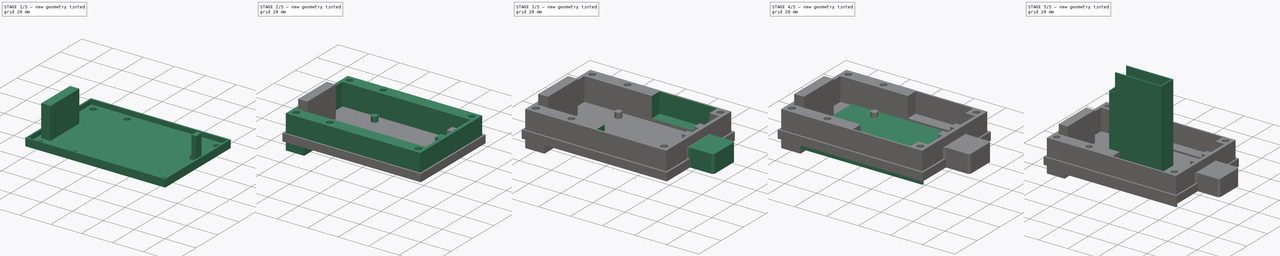
[diagram: build sequence overview — one tinted view per stage of 5, left to right]
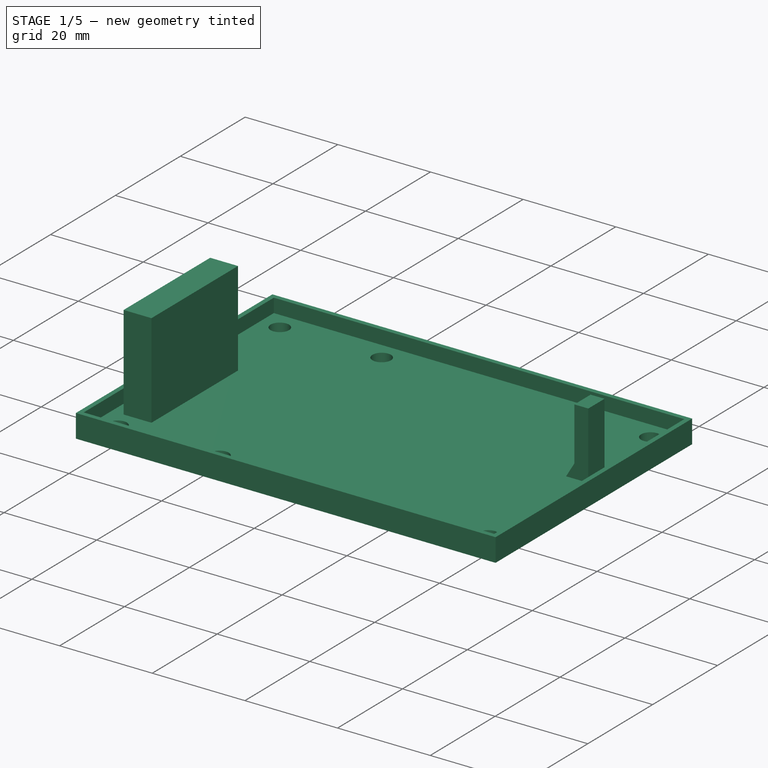
[diagram: stage 1 of 5 — iso view after this stage's code; geometry added in this stage tinted green]
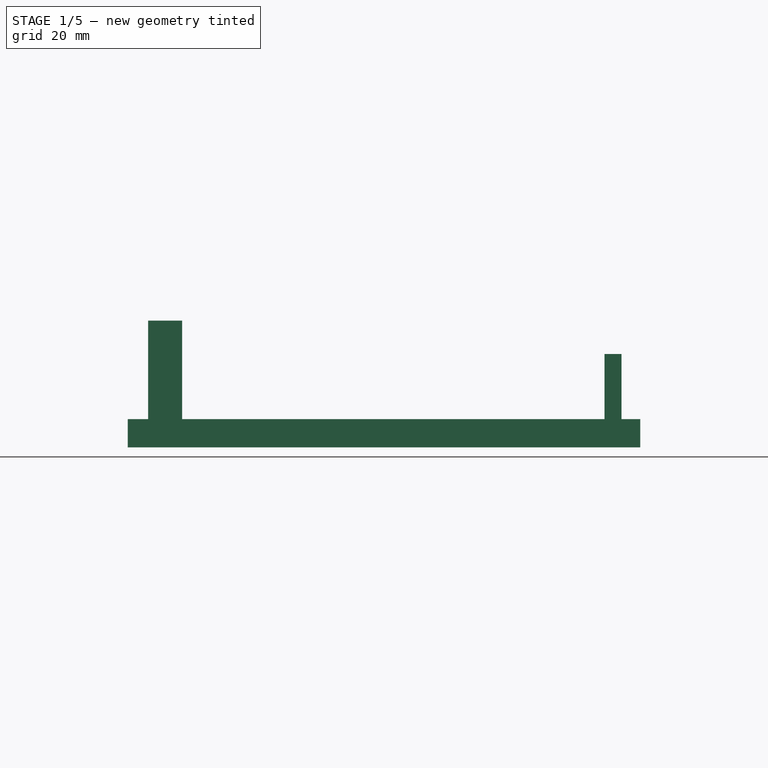
[diagram: stage 1 of 5 — front view after this stage's code; geometry added in this stage tinted green]
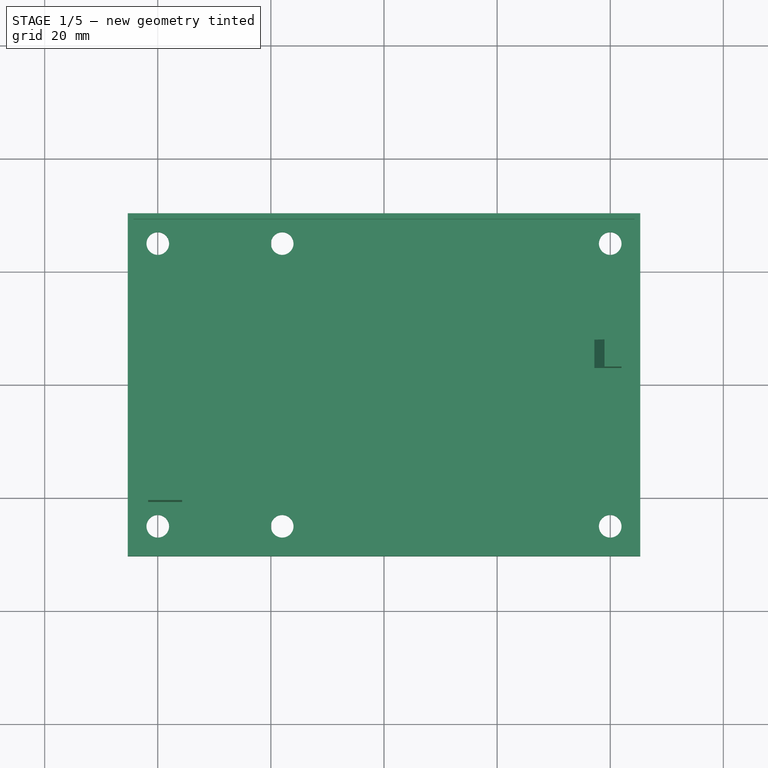
[diagram: stage 1 of 5 — top view after this stage's code; geometry added in this stage tinted green]
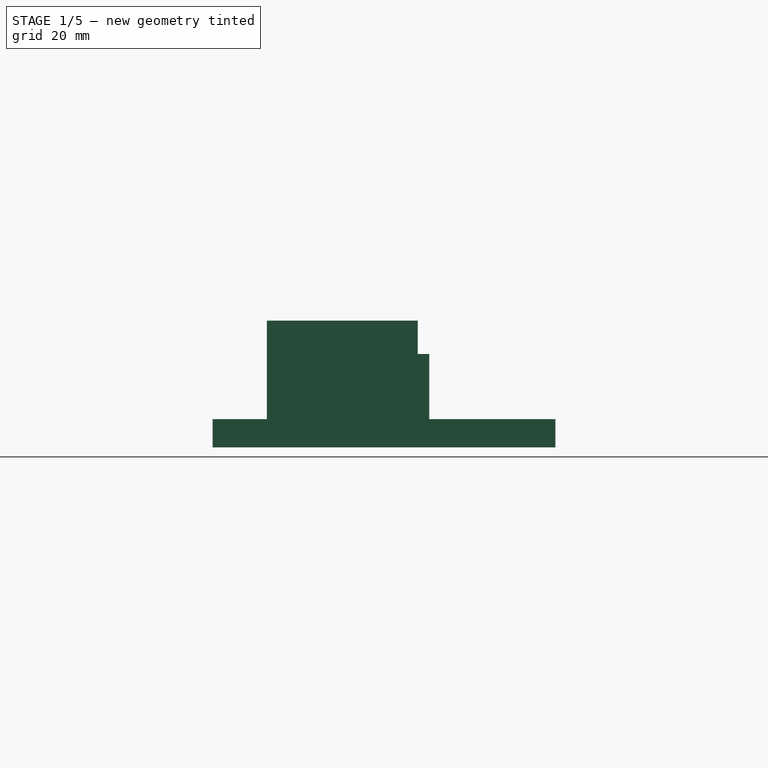
[diagram: stage 1 of 5 — right view after this stage's code; geometry added in this stage tinted green]
FCSTD DOCUMENT  (FreeCAD 0.21R33771 (Git))
Label: RAKTracker-V4.2
License: All rights reserved
LicenseURL: http://en.wikipedia.org/wiki/All_rights_reserved
objects: Part::Feature×99, App::Part×64, Sketcher::SketchObject×20, PartDesign::Pad×15, PartDesign::Pocket×6, PartDesign::Body×5, PartDesign::Plane×3, Spreadsheet::Sheet×1, PartDesign::Hole×1
note: 171 computed .brp shape members not serialized (recipe doc carries the construction recipe); baked Part::Feature solids carry a one-line shape summary decoded from their .brp

FEATURE [PartDesign::Body] Body003  label="Strap"
  Group = -> [Sketch013,Pad007,Sketch014,Pad008,Hole]
  Origin = -> Origin003
  Placement = pos=(0,1e-15,133.1) rot=(0,1,0;3.14159rad)
  Tip = -> Hole
FEATURE [Sketcher::SketchObject] Sketch015  label="Lid-BaseSketch"
  FullyConstrained = true
  MapMode = 5
  Support = -> [XY_Plane004]
  expr: Constraints[23] = <<RAKTrackerSheet>>.LidScrewHoleDia
  expr: Constraints[52] = <<RAKTrackerSheet>>.BoxWallThicknessLength / 2
  expr: Constraints[53] = <<RAKTrackerSheet>>.BoxWallThicknessLength / 2
  expr: Constraints[54] = <<RAKTrackerSheet>>.BoxWallThicknessLength / 2
  expr: Constraints[55] = <<RAKTrackerSheet>>.BoxWallThicknessLength / 2
  expr: Constraints[57] = <<RAKTrackerSheet>>.LidOverhangThickness
  expr: Constraints[58] = <<RAKTrackerSheet>>.LidOverhangThickness
  expr: Constraints[59] = <<RAKTrackerSheet>>.StrapHoleDistance
  expr: Constraints[8] = <<RAKTrackerSheet>>.BoxLength
  expr: Constraints[9] = <<RAKTrackerSheet>>.BoxWidth
  sketch-geometry (22):
    g0: LineSegment StartX=-44 StartY=29 StartZ=0 EndX=44 EndY=29 EndZ=0
    g1: LineSegment StartX=44 StartY=29 StartZ=0 EndX=44 EndY=-29 EndZ=0
    g2: LineSegment StartX=44 StartY=-29 StartZ=0 EndX=-44 EndY=-29 EndZ=0
    g3: LineSegment StartX=-44 StartY=-29 StartZ=0 EndX=-44 EndY=29 EndZ=0
    g4: Circle CenterX=-40 CenterY=25 CenterZ=0 NormalX=0 NormalY=0 NormalZ=1 AngleXU=0 Radius=2
    g5: Circle CenterX=-18 CenterY=25 CenterZ=0 NormalX=0 NormalY=0 NormalZ=1 AngleXU=0 Radius=2
    g6: Circle CenterX=40 CenterY=25 CenterZ=0 NormalX=0 NormalY=0 NormalZ=1 AngleXU=0 Radius=2
    g7: Circle CenterX=40 CenterY=-25 CenterZ=0 NormalX=0 NormalY=0 NormalZ=1 AngleXU=0 Radius=2
    g8: Circle CenterX=-18 CenterY=-25 CenterZ=0 NormalX=0 NormalY=0 NormalZ=1 AngleXU=0 Radius=2
    g9: Circle CenterX=-40 CenterY=-25 CenterZ=0 NormalX=0 NormalY=0 NormalZ=1 AngleXU=0 Radius=2
    g10: LineSegment StartX=-45 StartY=30 StartZ=0 EndX=45 EndY=30 EndZ=0
    g11: LineSegment StartX=45 StartY=30 StartZ=0 EndX=45 EndY=-30 EndZ=0
    g12: LineSegment StartX=45 StartY=-30 StartZ=0 EndX=-45 EndY=-30 EndZ=0
    g13: LineSegment StartX=-45 StartY=-30 StartZ=0 EndX=-45 EndY=30 EndZ=0
    g14: LineSegment StartX=-44 StartY=29 StartZ=0 EndX=-40 EndY=29 EndZ=0
    g15: LineSegment StartX=-40 StartY=29 StartZ=0 EndX=-40 EndY=25 EndZ=0
    g16: LineSegment StartX=-40 StartY=25 StartZ=0 EndX=-44 EndY=25 EndZ=0
    g17: LineSegment StartX=-44 StartY=25 StartZ=0 EndX=-44 EndY=29 EndZ=0
    g18: LineSegment StartX=40 StartY=-25 StartZ=0 EndX=44 EndY=-25 EndZ=0
    g19: LineSegment StartX=44 StartY=-25 StartZ=0 EndX=44 EndY=-29 EndZ=0
    g20: LineSegment StartX=44 StartY=-29 StartZ=0 EndX=40 EndY=-29 EndZ=0
    g21: LineSegment StartX=40 StartY=-29 StartZ=0 EndX=40 EndY=-25 EndZ=0
  constraints (56):
    c: Coincident(g0,g1)
    c: Coincident(g1,g2)
    c: Coincident(g2,g3)
    c: Coincident(g3,g0)
    c: Horizontal(g0)
    c: Horizontal(g2)
    c: Vertical(g1)
    c: Vertical(g3)
    c: DistanceX(g0,g0) = 88
    c: DistanceY(g1,g1) = 58
    c: Symmetric(g0,g1,g-1)
    c: Vertical(g4,g9)
    c: Vertical(g5,g8)
    c: Vertical(g6,g7)
    c: Horizontal(g7,g8)
    c: Horizontal(g8,g9)
    c: Horizontal(g4,g5)
    c: Horizontal(g5,g6)
    c: Equal(g4, g5-g9) x5
    c: Diameter(g4) = 4
    c: Coincident(g10,g11)
    c: Coincident(g11,g12)
    c: Coincident(g12,g13)
    c: Coincident(g13,g10)
    c: Horizontal(g10)
    c: Horizontal(g12)
    c: Vertical(g11)
    c: Vertical(g13)
    c: Coincident(g14,g15)
    c: Coincident(g15,g16)
    c: Coincident(g16,g17)
    c: Coincident(g17,g14)
    c: Horizontal(g14)
    c: Horizontal(g16)
    c: Vertical(g15)
    c: Vertical(g17)
    c: Coincident(g14,g0)
    c: Coincident(g15,g4)
    c: Coincident(g18,g19)
    c: Coincident(g19,g20)
    c: Coincident(g20,g21)
    c: Coincident(g21,g18)
    c: Horizontal(g18)
    c: Horizontal(g20)
    c: Vertical(g19)
    c: Vertical(g21)
    c: Coincident(g18,g7)
    c: Coincident(g19,g1)
    c: DistanceX(g18,g18) = 4
    c: DistanceY(g21,g21) = 4
    c: DistanceY(g15,g15) = 4
    c: DistanceX(g16,g16) = 4
    c: Symmetric(g10,g12,g-1)
    c: DistanceX(g12,g2) = 1
    c: DistanceY(g12,g2) = 1
    c: DistanceX(g5,g6) = 58
FEATURE [PartDesign::Pad] Pad009  label="Lid-Base"
  Direction = (0,0,1)
  Length = 2
  Length2 = 10
  Profile = -> Sketch015
  ReferenceAxis = -> Sketch015 [N_Axis]
  Type = 0
  expr: Length = <<RAKTrackerSheet>>.LidHeight
FEATURE [Sketcher::SketchObject] Sketch016  label="Lid-OverhangSketch"
  FullyConstrained = true
  MapMode = 5
  Support = -> [XY_Plane004]
  expr: Constraints[31] = <<RAKTrackerSheet>>.LidOverhangThickness
  expr: Constraints[8] = <<RAKTrackerSheet>>.BoxLength + 2 * <<RAKTrackerSheet>>.LidOverhangMargin
  expr: Constraints[9] = <<RAKTrackerSheet>>.BoxWidth + 2 * <<RAKTrackerSheet>>.LidOverhangMargin
  sketch-geometry (12):
    g0: LineSegment StartX=-44.3 StartY=29.3 StartZ=0 EndX=44.3 EndY=29.3 EndZ=0
    g1: LineSegment StartX=44.3 StartY=29.3 StartZ=0 EndX=44.3 EndY=-29.3 EndZ=0
    g2: LineSegment StartX=44.3 StartY=-29.3 StartZ=0 EndX=-44.3 EndY=-29.3 EndZ=0
    g3: LineSegment StartX=-44.3 StartY=-29.3 StartZ=0 EndX=-44.3 EndY=29.3 EndZ=0
    g4: LineSegment StartX=-45.3 StartY=30.3 StartZ=0 EndX=45.3 EndY=30.3 EndZ=0
    g5: LineSegment StartX=45.3 StartY=30.3 StartZ=0 EndX=45.3 EndY=-30.3 EndZ=0
    g6: LineSegment StartX=45.3 StartY=-30.3 StartZ=0 EndX=-45.3 EndY=-30.3 EndZ=0
    g7: LineSegment StartX=-45.3 StartY=-30.3 StartZ=0 EndX=-45.3 EndY=30.3 EndZ=0
    g8: LineSegment StartX=-45.3 StartY=30.3 StartZ=0 EndX=-44.3 EndY=30.3 EndZ=0
    g9: LineSegment StartX=-44.3 StartY=30.3 StartZ=0 EndX=-44.3 EndY=29.3 EndZ=0
    g10: LineSegment StartX=-44.3 StartY=29.3 StartZ=0 EndX=-45.3 EndY=29.3 EndZ=0
    g11: LineSegment StartX=-45.3 StartY=29.3 StartZ=0 EndX=-45.3 EndY=30.3 EndZ=0
  constraints (32):
    c: Coincident(g0,g1)
    c: Coincident(g1,g2)
    c: Coincident(g2,g3)
    c: Coincident(g3,g0)
    c: Horizontal(g0)
    c: Horizontal(g2)
    c: Vertical(g1)
    c: Vertical(g3)
    c: DistanceX(g0,g0) = 88.6
    c: DistanceY(g1,g1) = 58.6
    c: Symmetric(g0,g1,g-1)
    c: Coincident(g4,g5)
    c: Coincident(g5,g6)
    c: Coincident(g6,g7)
    c: Coincident(g7,g4)
    c: Horizontal(g4)
    c: Horizontal(g6)
    c: Vertical(g5)
    c: Vertical(g7)
    c: Symmetric(g5,g4,g-1)
    c: Coincident(g8,g9)
    c: Coincident(g9,g10)
    c: Coincident(g10,g11)
    c: Coincident(g11,g8)
    c: Horizontal(g8)
    c: Horizontal(g10)
    c: Vertical(g9)
    c: Vertical(g11)
    c: Coincident(g8,g4)
    c: Coincident(g9,g0)
    c: Equal(g9,g10)
    c: DistanceY(g9,g9) = 1
FEATURE [PartDesign::Pad] Pad010  label="Lid-Overhang"
  BaseFeature = -> Pad009
  Direction = (0,0,1)
  Length = 5
  Length2 = 10
  Profile = -> Sketch016
  ReferenceAxis = -> Sketch016 [N_Axis]
  Type = 0
FEATURE [Sketcher::SketchObject] Sketch017  label="Lid-AntHolderSketch"
  FullyConstrained = true
  MapMode = 5
  Support = -> [XY_Plane004]
  expr: Constraints[10] = <<RAKTrackerSheet>>.BoxInternalWidth
  expr: Constraints[18] = <<RAKTrackerSheet>>.AntLength / 3 * 2
  expr: Constraints[19] = <<RAKTrackerSheet>>.AntWidth - 2 mm
  expr: Constraints[20] = <<RAKTrackerSheet>>.LidOverhangMargin
  expr: Constraints[22] = <<RAKTrackerSheet>>.LidOverhangMargin
  expr: Constraints[8] = <<RAKTrackerSheet>>.BoxInternalLength
  sketch-geometry (8):
    g0: LineSegment StartX=-42 StartY=21 StartZ=0 EndX=42 EndY=21 EndZ=0
    g1: LineSegment StartX=42 StartY=21 StartZ=0 EndX=42 EndY=-21 EndZ=0
    g2: LineSegment StartX=42 StartY=-21 StartZ=0 EndX=-42 EndY=-21 EndZ=0
    g3: LineSegment StartX=-42 StartY=-21 StartZ=0 EndX=-42 EndY=21 EndZ=0
    g4: LineSegment StartX=-41.7 StartY=5.96667 StartZ=0 EndX=-35.7 EndY=5.96667 EndZ=0
    g5: LineSegment StartX=-35.7 StartY=5.96667 StartZ=0 EndX=-35.7 EndY=-20.7 EndZ=0
    g6: LineSegment StartX=-35.7 StartY=-20.7 StartZ=0 EndX=-41.7 EndY=-20.7 EndZ=0
    g7: LineSegment StartX=-41.7 StartY=-20.7 StartZ=0 EndX=-41.7 EndY=5.96667 EndZ=0
  constraints (23):
    c: Coincident(g0,g1)
    c: Coincident(g1,g2)
    c: Coincident(g2,g3)
    c: Coincident(g3,g0)
    c: Horizontal(g0)
    c: Horizontal(g2)
    c: Vertical(g1)
    c: Vertical(g3)
    c: DistanceX(g0,g0) = 84
    c: Symmetric(g1,g0,g-1)
    c: DistanceY(g1,g1) = 42
    c: Coincident(g4,g5)
    c: Coincident(g5,g6)
    c: Coincident(g6,g7)
    c: Coincident(g7,g4)
    c: Horizontal(g4)
    c: Horizontal(g6)
    c: Vertical(g7)
    c: DistanceY(g5,g5) = 26.6667
    c: DistanceX(g4,g4) = 6
    c: DistanceX(g2,g6) = 0.3
    c: Vertical(g5)
    c: DistanceY(g2,g6) = 0.3
FEATURE [PartDesign::Pad] Pad011  label="Lid-AntHolder"
  BaseFeature = -> Pad010
  Direction = (0,0,1)
  Length = 22.4
  Length2 = 10
  Profile = -> Sketch017
  ReferenceAxis = -> Sketch017 [N_Axis]
  Type = 0
  expr: Length = <<RAKTrackerSheet>>.BoxHeight + <<RAKTrackerSheet>>.AntBumpHeight - Spreadsheet.AntHeightNonWire - <<RAKTrackerSheet>>.AntBumpFloorThickness + <<RAKTrackerSheet>>.LidHeight
FEATURE [PartDesign::Body] Body  label="MainBox"
  Group = -> [Sketch,Pad,Sketch002,Pocket,DatumPlane,Sketch003,Pad002,Sketch007,Pocket002,Sketch008,Pocket003,DatumPlane001,Sketch009,Pocket004,Sketch010,Pad005,DatumPlane002,Sketch011,Pocket005,Sketch019,Pad013]
  Origin = -> Origin
  Placement = pos=(0,0,46.2) rot=(0,0,1;0rad)
  Tip = -> Pad013
FEATURE [Sketcher::SketchObject] Sketch020  label="Lid-GPSHolderSketch"
  FullyConstrained = true
  MapMode = 5
  Placement = pos=(0,0,0) rot=(1,0,0;1.5708rad)
  Support = -> [XZ_Plane004]
  expr: Constraints[10] = <<RAKTrackerSheet>>.BoxHeight
  expr: Constraints[11] = <<RAKTrackerSheet>>.BoxInternalLength / 2
  expr: Constraints[12] = <<RAKTrackerSheet>>.BatBoxFromSide
  expr: Constraints[9] = <<RAKTrackerSheet>>.LidGPSHolderThickness
  sketch-geometry (5):
    g0: LineSegment StartX=36 StartY=0 StartZ=0 EndX=42 EndY=0 EndZ=0
    g1: LineSegment StartX=42 StartY=0 StartZ=0 EndX=42 EndY=16.5 EndZ=0
    g2: LineSegment StartX=42 StartY=16.5 StartZ=0 EndX=39 EndY=16.5 EndZ=0
    g3: LineSegment StartX=39 StartY=16.5 StartZ=0 EndX=39 EndY=5 EndZ=0
    g4: LineSegment StartX=39 StartY=5 StartZ=0 EndX=36 EndY=0 EndZ=0
  constraints (15):
    c: PointOnObject(g0,g-1)
    c: PointOnObject(g0,g-1)
    c: Vertical(g1)
    c: Vertical(g3)
    c: Coincident(g4,g0)
    c: Horizontal(g2)
    c: Coincident(g3,g2)
    c: Coincident(g1,g2)
    c: Coincident(g3,g4)
    c: DistanceX(g2,g2) = 3
    c: DistanceY(g0,g1) = 16.5
    c: DistanceX(g-1,g0) = 42
    c: DistanceX(g0,g0) = 6
    c: Coincident(g1,g0)
    c: DistanceY(g0,g3) = 5
FEATURE [PartDesign::Pad] Pad014  label="Lid-GPSHolderLeft"
  BaseFeature = -> Pad011
  Direction = (0,-1,-2e-16)
  Length = -3
  Length2 = 8
  Profile = -> Sketch020
  ReferenceAxis = -> Sketch020 [N_Axis]
  Type = 4
  expr: Length = (<<RAKTrackerSheet>>.GPSLength / 2 - <<RAKTrackerSheet>>.LidGPSHolderWidth) * -1
  expr: Length2 = <<RAKTrackerSheet>>.GPSLength / 2
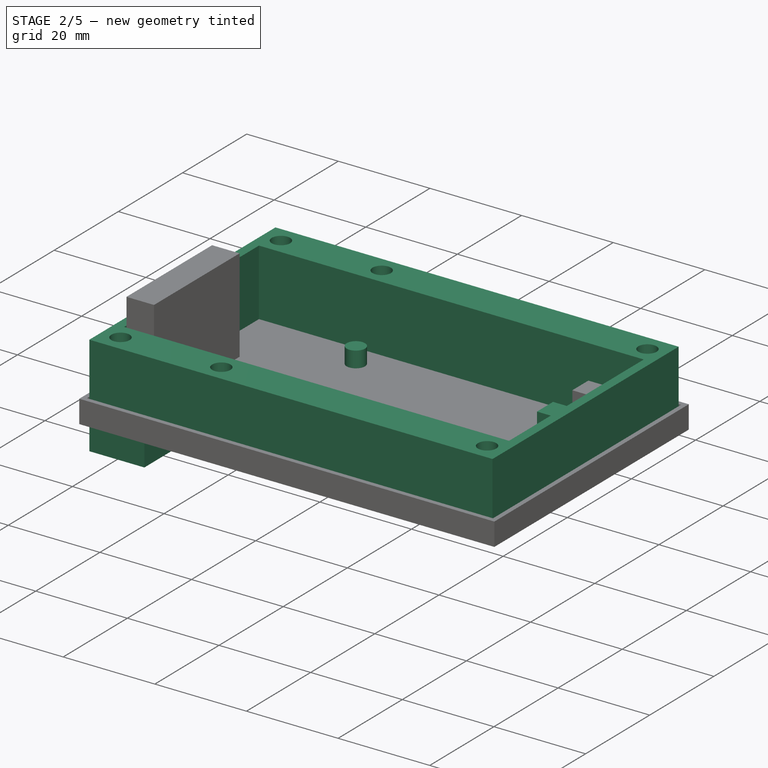
[diagram: stage 2 of 5 — iso view after this stage's code; geometry added in this stage tinted green]
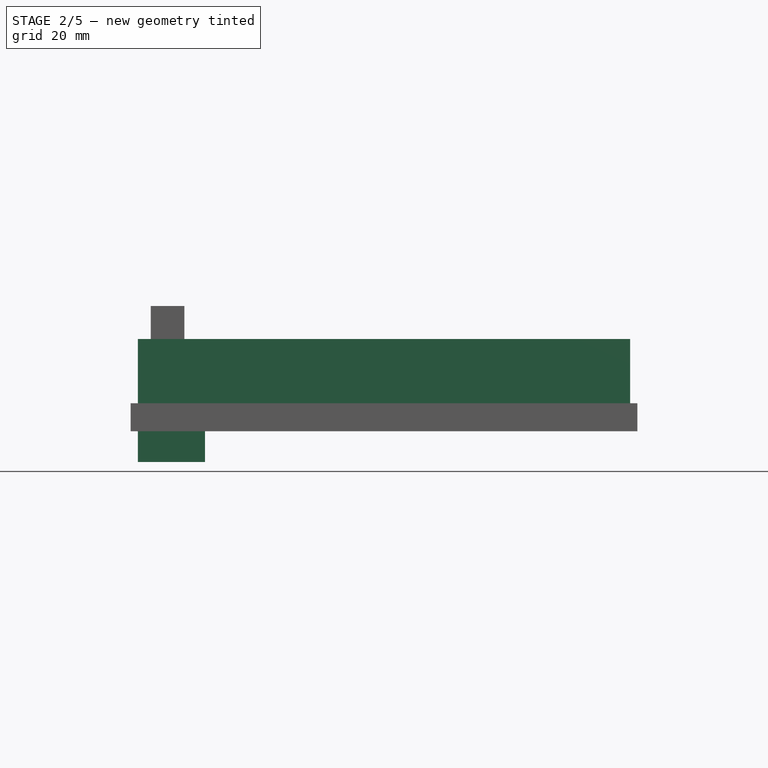
[diagram: stage 2 of 5 — front view after this stage's code; geometry added in this stage tinted green]
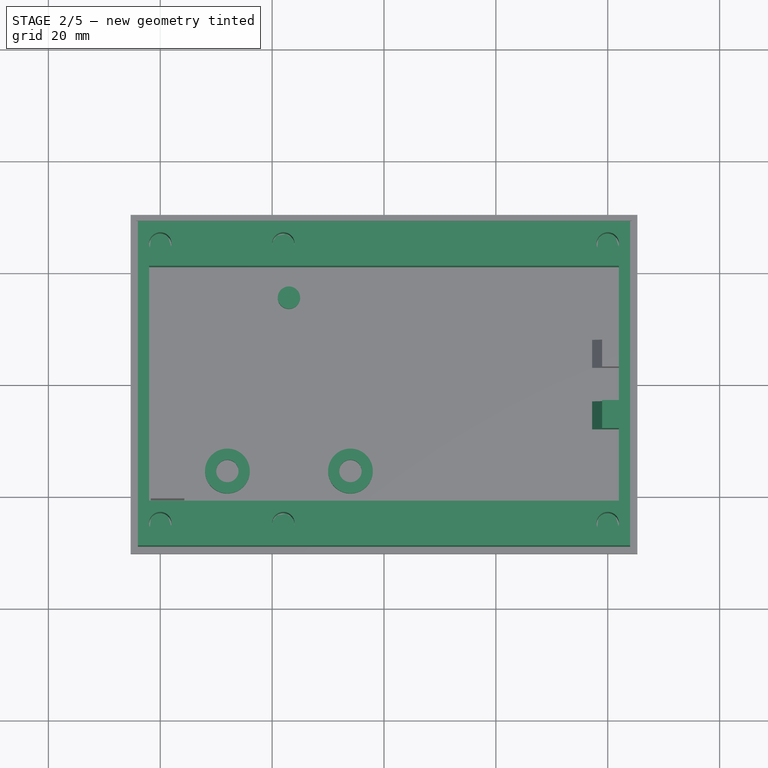
[diagram: stage 2 of 5 — top view after this stage's code; geometry added in this stage tinted green]
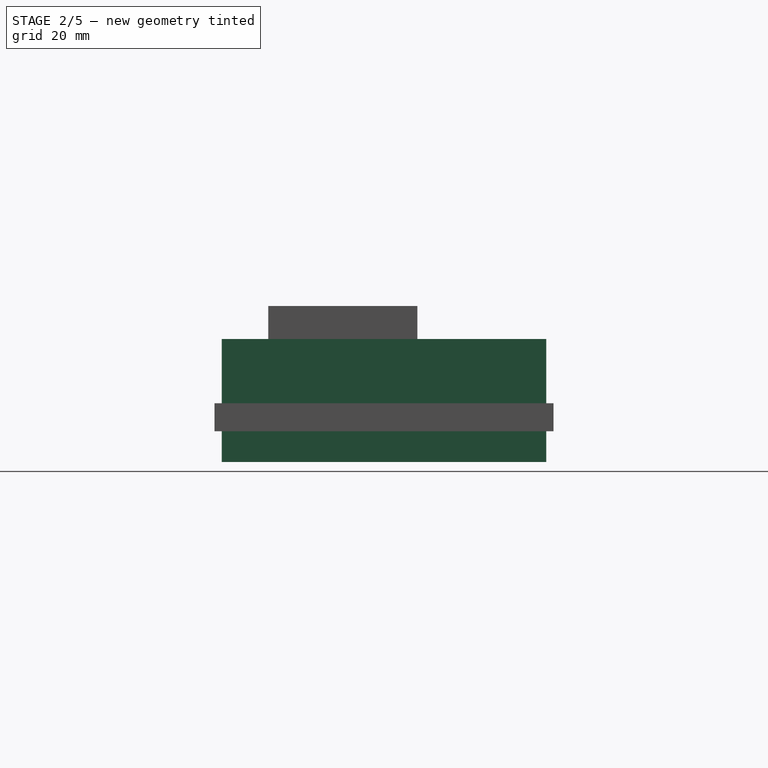
[diagram: stage 2 of 5 — right view after this stage's code; geometry added in this stage tinted green]
FEATURE [Spreadsheet::Sheet] Spreadsheet  label="RAKTrackerSheet"
  cells = A1='Box Dimensions; D1='Components; G1='TODO; A3='Box Length; B3(BoxLength)==B40 + E20 + E23 + E20 + B13 + H14; D3='Solar Panel Length; E3(SolarPanelLength)==70 mm; G3='Hole sizes (PCB and Wall) inserts; A4='Box Width; B4(BoxWidth)==58 mm; D4='Solar Panel Width; E4(SolarPanelWidth)==55 mm; A5='Box floor; B5(BoxFloorHeight)==1 mm; D5='Solar Panel height; E5(SolarPanelHeight)==2.7 mm; A6='Box wall thickness length (including screws); B6(BoxWallThicknessLength)==8 mm; D6='Solar Panel Margin; E6(SolarPanelMargin)==0.6 mm; A7='Box wall thickness width ; B7(BoxWallThicknessWidth)==2 mm; D7='Battery Length; E7(BatLength)==55 mm; G7='Battery Box Length; H7(BatBoxLength)==E7 + H12; I7='Battery Holder Lenght + Wallthickness; A8='Box Screw Hole Dia; B8(BoxScrewHoleDia)==4 mm; D8='Battery Width; E8(BatWidth)==34 mm; G8='Battery Box Width; H8(BatBoxWidth)==E8 + 2 * H12; A9='Box Screw Height/Depth; B9(BoxScrewHeight)==8 mm; D9='Battery Height; E9(BatHeight)==10 mm; G9='Battery Box Height; H9(BatBoxHeight)==E9 + 2 * H12; A10='Box Height; B10(BoxHeight)==B5 + E18; G10='Battery Box Height Gap; H10(BatBoxHeightGap)==H9 + 1 mm; A11='Box Corner Radisu; B11(BoxCornerRadius)==1 mm; G11='Battery Box Wire Gap Length; H11(BatBoxWireGapLength)==12 mm; A12='Box Internal Wall Width; B12(BoxInternalWallThickness)==1.5 mm; G12='Battery Box Wall Thickness; H12(BatBoxWallThickness)==0.8 mm; A13='Box Battery Space (width); B13(BoxBatSpace)==H8 + B16; C13='1% margin; G13='Battery Box Wire Gap Width; H13(BatBoxWireGapWidth)==4 mm; A14='Box internal Length; B14(BoxInternalLength)==B3 - 2 * B7; D14='PCB Width Outer; E14(PCBWidthOuter)==34 mm; G14='Battery Box From Side; H14(BatBoxFromSide)==6 mm; A15='Box Internal Width; B15(BoxInternalWidth)==B4 - 2 * B6; D15='PCB Mount Hole Distance (length); E15(PCBMountHoleDistanceLength)==31 mm; A16='Box Battery Margin; B16==0.4 mm; D16='PCB Length; E16==36 mm; D17='PCB Width; E17==30.5 mm; A18='Seal Depth; B18(SealDepth)==0.6 mm; D18='PCB Height; E18==15.5 mm; A19='Seal width; B19(SealWidth)==1 mm; D19='PCB Mount Height; E19(PCBMountHeight)==4.5 mm; A20='Seal Corner Radius; B20(SealCornerRadius)==2.5 mm; D20='PCB Mount From Side; E20(PCBMountFromSide)==6 mm; D21='PCB Mount Hole Dia; E21(PCBMountHoleDia)==4 mm; A22='GPS Mount Corner Radius; B22(GPSMountCornerRadius)==1.5 mm; D22='PCB Mount Dia; E22(PCBMountDia)==8 mm; A23='GPS Mount Wall Thickness; B23(GPSMountWallThickness)==1.6 mm; D23='PCB Mount Hole Distance (side); E23(PCBMountHoleDistance)==22 mm; D24='GPS Length and Width; E24(GPSLength)==16 mm; A25='Lid Screw Hole DIa; B25(LidScrewHoleDia)==4 mm; D25='GPS Height; E25(GPSHeight)==8 mm; A26='Lid Height; B26(LidHeight)==2 mm; D27='Antenna Length; E27(AntLength)==40 mm; A28='Box Upper rim width; B28(BoxRimWidth)==7 mm; D28='Antenne width; E28(AntWidth)==8 mm; A29='Box Upper rim min vertical height; B29(BoxRimHeight)==7 mm; D29='Antenna Height Wire; E29(AntHeightWire)==2 mm; D30='AntBraceThickness; E30(AntWallThickness)==1 mm; A31='Lid Overhang thickness; B31(LidOverhangThickness)==1 mm; D31='Strap WIdth; E31==50 mm; A32='Lid Overhang margin; B32(LidOverhangMargin)==0.3 mm; D32='Strap Holder Dia; E32(StrapHolderDia)==8 mm; D33='Strap Holder hole distance; E33(StrapHoleDistance)==E31 + E32; A34='Lid GPS Holder Thickness; B34(LidGPSHolderThickness)==3 mm; D34='Antenna Height Non-Wire; E34(AntHeightNonWire)==0.6 mm; A35='Lid GPS Holder Width; B35(LidGPSHolderWidth)==5 mm; A38='Ant Bump Height; B38(AntBumpHeight)==5.5 mm; A39='Ant Bump Floor thickness; B39(AntBumpFloorThickness)==1 mm; A40='Ant Bump Length; B40(AntBumpLength)==E28 + B7 + B7
FEATURE [Sketcher::SketchObject] Sketch  label="MainBox-BodySketch"
  FullyConstrained = true
  MapMode = 5
  Placement = pos=(0,0,0) rot=(1,0,0;1.5708rad)
  Support = -> [XZ_Plane]
  expr: Constraints[13] = <<RAKTrackerSheet>>.BoxLength
  expr: Constraints[14] = <<RAKTrackerSheet>>.BoxHeight
  expr: Constraints[15] = <<RAKTrackerSheet>>.AntBumpHeight
  expr: Constraints[16] = <<RAKTrackerSheet>>.AntBumpLength
  sketch-geometry (6):
    g0: LineSegment StartX=-32 StartY=0 StartZ=0 EndX=44 EndY=0 EndZ=0
    g1: LineSegment StartX=44 StartY=0 StartZ=0 EndX=44 EndY=16.5 EndZ=0
    g2: LineSegment StartX=44 StartY=16.5 StartZ=0 EndX=-44 EndY=16.5 EndZ=0
    g3: LineSegment StartX=-44 StartY=16.5 StartZ=0 EndX=-44 EndY=-5.5 EndZ=0
    g4: LineSegment StartX=-44 StartY=-5.5 StartZ=0 EndX=-32 EndY=-5.5 EndZ=0
    g5: LineSegment StartX=-32 StartY=0 StartZ=0 EndX=-32 EndY=-5.5 EndZ=0
  constraints (17):
    c: PointOnObject(g0,g-1)
    c: PointOnObject(g0,g-1)
    c: Coincident(g1,g0)
    c: Vertical(g1)
    c: Vertical(g3)
    c: Coincident(g5,g0)
    c: Coincident(g5,g4)
    c: Symmetric(g3,g2,g-2)
    c: Vertical(g5)
    c: Horizontal(g4)
    c: Coincident(g2,g1)
    c: Coincident(g3,g2)
    c: Coincident(g3,g4)
    c: DistanceX(g2,g2) = 88
    c: DistanceY(g1,g1) = 16.5
    c: DistanceY(g5,g5) = 5.5
    c: DistanceX(g4,g4) = 12
FEATURE [PartDesign::Pad] Pad  label="MainBox-Body"
  Direction = (0,-1,-2e-16)
  Length = 58
  Length2 = 10
  Midplane = true
  Placement = pos=(0,0,0) rot=(1,0,0;1.5708rad)
  Profile = -> Sketch
  ReferenceAxis = -> Sketch [N_Axis]
  Type = 0
  expr: Length = <<RAKTrackerSheet>>.BoxWidth
FEATURE [Sketcher::SketchObject] Sketch002  label="MainBox-MainPocketSketch"
  FullyConstrained = true
  MapMode = 5
  Placement = pos=(0,0,0) rot=(1,0,0;1.5708rad)
  Support = -> [XZ_Plane]
  expr: Constraints[11] = <<RAKTrackerSheet>>.AntWidth
  expr: Constraints[12] = <<RAKTrackerSheet>>.BoxInternalLength
  expr: Constraints[13] = <<RAKTrackerSheet>>.BoxFloorHeight
  expr: Constraints[15] = <<RAKTrackerSheet>>.BoxHeight - <<RAKTrackerSheet>>.BoxFloorHeight
  expr: Constraints[16] = <<RAKTrackerSheet>>.AntBumpHeight
  sketch-geometry (6):
    g0: LineSegment StartX=-42 StartY=16.5 StartZ=0 EndX=-42 EndY=-4.5 EndZ=0
    g1: LineSegment StartX=-42 StartY=-4.5 StartZ=0 EndX=-34 EndY=-4.5 EndZ=0
    g2: LineSegment StartX=-34 StartY=-4.5 StartZ=0 EndX=-34 EndY=1 EndZ=0
    g3: LineSegment StartX=-34 StartY=1 StartZ=0 EndX=42 EndY=1 EndZ=0
    g4: LineSegment StartX=42 StartY=1 StartZ=0 EndX=42 EndY=16.5 EndZ=0
    g5: LineSegment StartX=42 StartY=16.5 StartZ=0 EndX=-42 EndY=16.5 EndZ=0
  constraints (17):
    c: Coincident(g1,g0)
    c: Coincident(g2,g1)
    c: Coincident(g3,g2)
    c: Horizontal(g3)
    c: Coincident(g4,g3)
    c: Vertical(g4)
    c: Coincident(g5,g4)
    c: Coincident(g5,g0)
    c: Vertical(g0)
    c: Horizontal(g1)
    c: Vertical(g2)
    c: DistanceX(g1,g1) = 8
    c: DistanceX(g5,g5) = 84
    c: DistanceY(g-1,g2) = 1
    c: Symmetric(g4,g0,g-2)
    c: DistanceY(g4,g4) = 15.5
    c: DistanceY(g2,g2) = 5.5
FEATURE [PartDesign::Pocket] Pocket  label="MainBox-MainPocket"
  BaseFeature = -> Pad
  Direction = (0,1,2e-16)
  Length = 42
  Length2 = 5
  Midplane = true
  Placement = pos=(0,0,0) rot=(1,0,0;1.5708rad)
  Profile = -> Sketch002
  ReferenceAxis = -> Sketch002 [N_Axis]
  Type = 0
  expr: Length = <<RAKTrackerSheet>>.BoxInternalWidth
FEATURE [PartDesign::Plane] DatumPlane  label="MainBox-Bottom"
  Length = 119.533
  MapMode = 2
  Placement = pos=(0,0,1) rot=(0,0,1;0rad)
  ResizeMode = 0
  Width = 73.5332
  expr: .Placement.Base.z = <<RAKTrackerSheet>>.BoxFloorHeight
FEATURE [Sketcher::SketchObject] Sketch003  label="MainBox-PCBMountSketch"
  ExternalGeometry = -> [Sketch002]
  FullyConstrained = true
  MapMode = 5
  Placement = pos=(0,0,1) rot=(0,0,1;0rad)
  Support = -> [DatumPlane]
  expr: Constraints[10] = <<RAKTrackerSheet>>.PCBMountHoleDistanceLength / 2
  expr: Constraints[12] = <<RAKTrackerSheet>>.PCBMountFromSide
  expr: Constraints[3] = <<RAKTrackerSheet>>.PCBMountHoleDistance
  expr: Constraints[4] = <<RAKTrackerSheet>>.PCBMountHoleDistanceLength
  expr: Constraints[5] = <<RAKTrackerSheet>>.PCBMountHoleDistance / 2
  expr: Constraints[7] = <<RAKTrackerSheet>>.PCBMountDia
  expr: Constraints[9] = <<RAKTrackerSheet>>.PCBMountHoleDia
  sketch-geometry (5):
    g0: Circle CenterX=-17 CenterY=15.5 CenterZ=0 NormalX=0 NormalY=0 NormalZ=1 AngleXU=0 Radius=2
    g1: Circle CenterX=-6 CenterY=-15.5 CenterZ=0 NormalX=0 NormalY=0 NormalZ=1 AngleXU=0 Radius=4
    g2: Circle CenterX=-28 CenterY=-15.5 CenterZ=0 NormalX=0 NormalY=0 NormalZ=1 AngleXU=0 Radius=4
    g3: Circle CenterX=-28 CenterY=-15.5 CenterZ=0 NormalX=0 NormalY=0 NormalZ=1 AngleXU=0 Radius=2
    g4: Circle CenterX=-6 CenterY=-15.5 CenterZ=0 NormalX=0 NormalY=0 NormalZ=1 AngleXU=0 Radius=2
  constraints (13):
    c: Coincident(g3,g2)
    c: Coincident(g4,g1)
    c: Horizontal(g1,g2)
    c: DistanceX(g2,g1) = 22
    c: DistanceY(g2,g0) = 31
    c: DistanceX(g0,g1) = 11
    c: Equal(g2,g1)
    c: Diameter(g2) = 8
    c: Equal(g3,g4)
    c: Diameter(g3) = 4
    c: DistanceY(g2,g-1) = 15.5
    c: Diameter(g0) = 4
    c: DistanceX(g-5,g2) = 6
FEATURE [PartDesign::Pad] Pad002  label="MainBox-PCBMount"
  BaseFeature = -> Pocket
  Direction = (0,0,1)
  Length = 4.5
  Length2 = 10
  Placement = pos=(0,0,0) rot=(1,0,0;1.5708rad)
  Profile = -> Sketch003
  ReferenceAxis = -> Sketch003 [N_Axis]
  Type = 0
  expr: Length = <<RAKTrackerSheet>>.PCBMountHeight
FEATURE [PartDesign::Body] Body002  label="BatteryHolder"
  Group = -> [Sketch004,Pad003,Sketch005,Pad004,Sketch006,Pocket001]
  Origin = -> Origin002
  Placement = pos=(17.4,28,57.1) rot=(1,0,0;1.5708rad)
  Tip = -> Pocket001
FEATURE [Sketcher::SketchObject] Sketch007  label="MainBox-LidScrewSketch"
  FullyConstrained = true
  MapMode = 5
  Placement = pos=(0,0,1) rot=(0,0,1;0rad)
  Support = -> [DatumPlane]
  expr: Constraints[10] = <<RAKTrackerSheet>>.BoxWidth
  expr: Constraints[20] = <<RAKTrackerSheet>>.BoxScrewHoleDia
  expr: Constraints[21] = <<RAKTrackerSheet>>.BoxWallThicknessLength / 2
  expr: Constraints[22] = <<RAKTrackerSheet>>.BoxWallThicknessLength / 2
  expr: Constraints[26] = <<RAKTrackerSheet>>.BoxWallThicknessLength / 2
  expr: Constraints[27] = <<RAKTrackerSheet>>.BoxWallThicknessLength / 2
  expr: Constraints[28] = <<RAKTrackerSheet>>.StrapHoleDistance
  expr: Constraints[9] = <<RAKTrackerSheet>>.BoxLength
  sketch-geometry (10):
    g0: LineSegment StartX=-44 StartY=29 StartZ=0 EndX=44 EndY=29 EndZ=0
    g1: LineSegment StartX=44 StartY=29 StartZ=0 EndX=44 EndY=-29 EndZ=0
    g2: LineSegment StartX=44 StartY=-29 StartZ=0 EndX=-44 EndY=-29 EndZ=0
    g3: LineSegment StartX=-44 StartY=-29 StartZ=0 EndX=-44 EndY=29 EndZ=0
    g4: Circle CenterX=-40 CenterY=25 CenterZ=0 NormalX=0 NormalY=0 NormalZ=1 AngleXU=0 Radius=2
    g5: Circle CenterX=-18 CenterY=25 CenterZ=0 NormalX=0 NormalY=0 NormalZ=1 AngleXU=0 Radius=2
    g6: Circle CenterX=40 CenterY=25 CenterZ=0 NormalX=0 NormalY=0 NormalZ=1 AngleXU=0 Radius=2
    g7: Circle CenterX=40 CenterY=-25 CenterZ=0 NormalX=0 NormalY=0 NormalZ=1 AngleXU=0 Radius=2
    g8: Circle CenterX=-40 CenterY=-25 CenterZ=0 NormalX=0 NormalY=0 NormalZ=1 AngleXU=0 Radius=2
    g9: Circle CenterX=-18 CenterY=-25 CenterZ=0 NormalX=0 NormalY=0 NormalZ=1 AngleXU=0 Radius=2
  constraints (29):
    c: Coincident(g0,g1)
    c: Coincident(g1,g2)
    c: Coincident(g2,g3)
    c: Coincident(g3,g0)
    c: Horizontal(g0)
    c: Horizontal(g2)
    c: Vertical(g1)
    c: Vertical(g3)
    c: Symmetric(g0,g1,g-1)
    c: DistanceX(g0,g0) = 88
    c: DistanceY(g3,g3) = 58
    c: Horizontal(g4,g5)
    c: Horizontal(g5,g6)
    c: Horizontal(g8,g9)
    c: Horizontal(g9,g7)
    c: Equal(g4,g5)
    c: Equal(g4,g6)
    c: Equal(g4,g7)
    c: Equal(g4,g9)
    c: Equal(g4,g8)
    c: Diameter(g4) = 4
    c: DistanceY(g4,g0) = 4
    c: DistanceY(g2,g8) = 4
    c: Vertical(g4,g8)
    c: Vertical(g5,g9)
    c: Vertical(g6,g7)
    c: DistanceX(g6,g0) = 4
    c: DistanceX(g2,g8) = 4
    c: DistanceX(g5,g6) = 58
FEATURE [PartDesign::Pocket] Pocket002  label="MainBox-LidScrew"
  BaseFeature = -> Pad002
  Direction = (0,0,-1)
  Length = 16.5
  Length2 = 5
  Placement = pos=(0,0,0) rot=(1,0,0;1.5708rad)
  Profile = -> Sketch007
  ReferenceAxis = -> Sketch007 [N_Axis]
  Reversed = true
  Type = 0
  expr: Length = <<RAKTrackerSheet>>.BoxHeight
FEATURE [PartDesign::Pad] Pad015  label="Lid-GPSHolderRight"
  BaseFeature = -> Pad014
  Direction = (0,-1,-2e-16)
  Length = -3
  Length2 = 8
  Profile = -> Sketch020
  ReferenceAxis = -> Sketch020 [N_Axis]
  Reversed = true
  Type = 4
  expr: Length = (<<RAKTrackerSheet>>.GPSLength / 2 - <<RAKTrackerSheet>>.LidGPSHolderWidth) * -1
  expr: Length2 = <<RAKTrackerSheet>>.GPSLength / 2
FEATURE [PartDesign::Body] Body004  label="Lid"
  Group = -> [Sketch015,Pad009,Sketch016,Pad010,Sketch017,Pad011,Sketch020,Pad014,Pad015]
  Origin = -> Origin004
  Placement = pos=(0,-1e-15,147) rot=(1,0,0;3.14159rad)
  Tip = -> Pad015
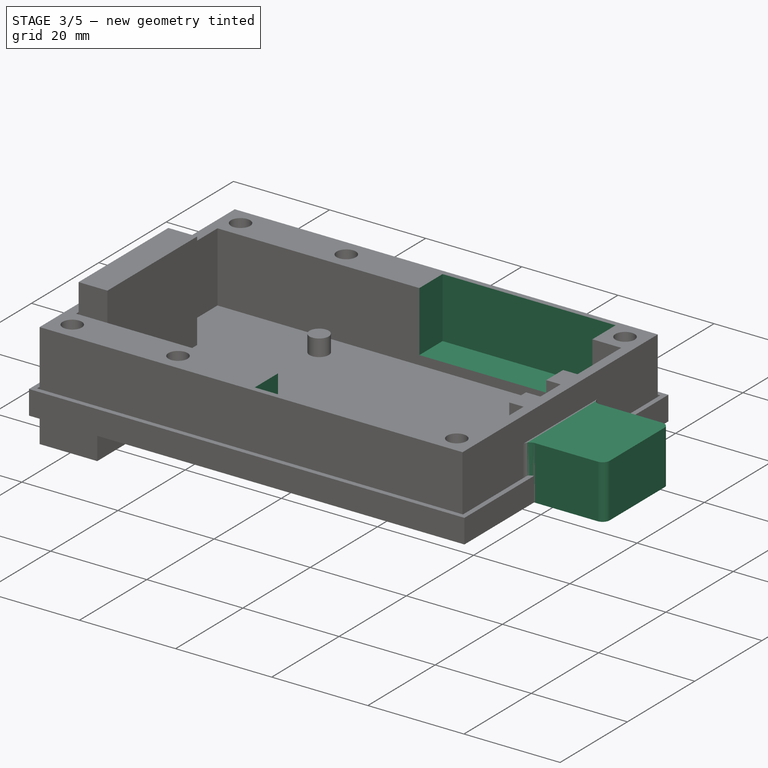
[diagram: stage 3 of 5 — iso view after this stage's code; geometry added in this stage tinted green]
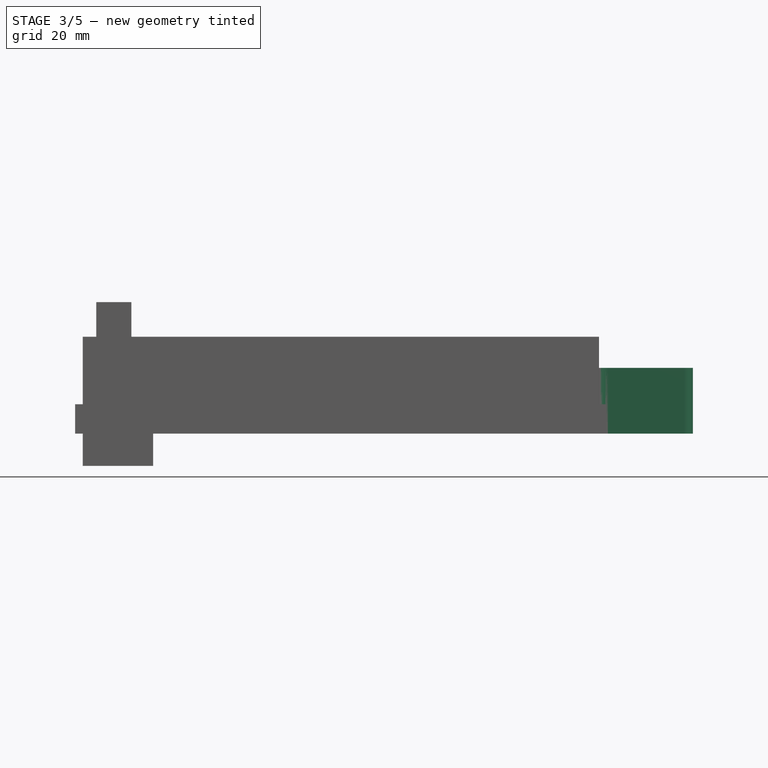
[diagram: stage 3 of 5 — front view after this stage's code; geometry added in this stage tinted green]
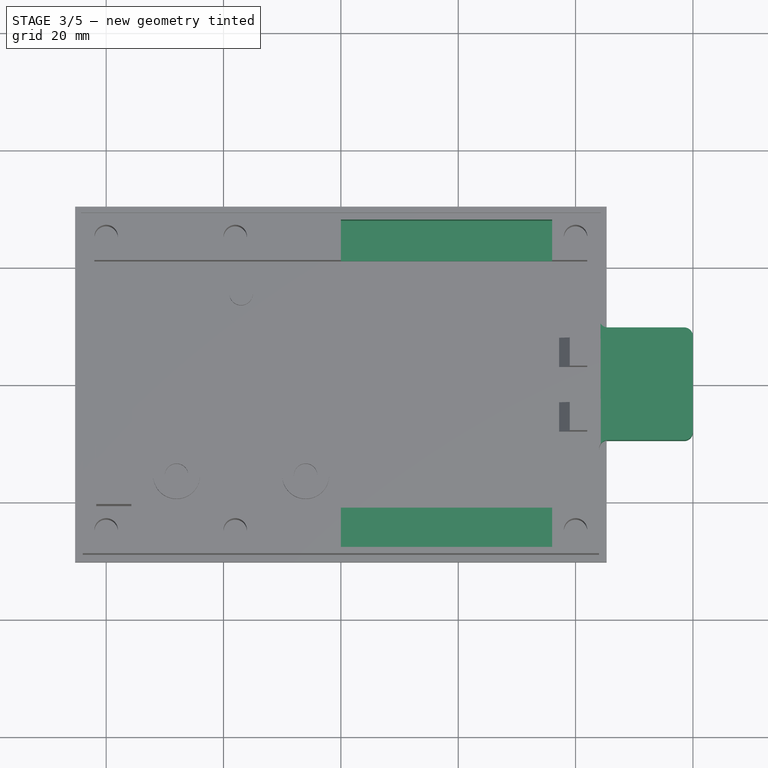
[diagram: stage 3 of 5 — top view after this stage's code; geometry added in this stage tinted green]
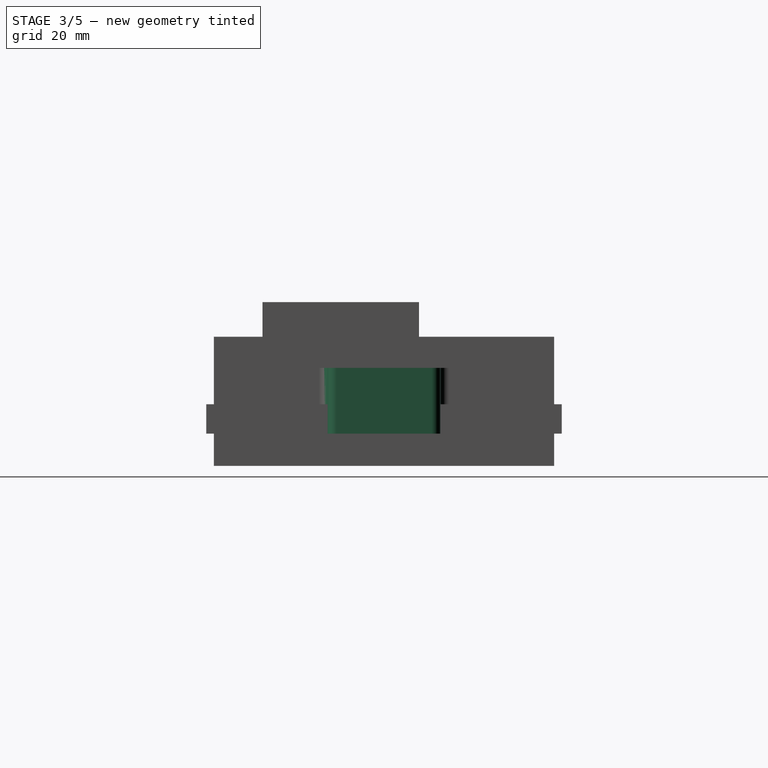
[diagram: stage 3 of 5 — right view after this stage's code; geometry added in this stage tinted green]
FEATURE [PartDesign::Plane] DatumPlane001  label="MainBox-Top"
  Length = 119.533
  MapMode = 2
  Placement = pos=(0,0,16.5) rot=(0,0,1;0rad)
  ResizeMode = 0
  Width = 73.5332
  expr: .Placement.Base.z = <<RAKTrackerSheet>>.BoxHeight
FEATURE [Sketcher::SketchObject] Sketch008  label="MainBox-BatteryHolderSketch"
  ExternalGeometry = -> [Sketch003]
  FullyConstrained = true
  MapMode = 5
  Placement = pos=(0,0,16.5) rot=(0,0,1;0rad)
  Support = -> [DatumPlane001]
  expr: Constraints[10] = <<RAKTrackerSheet>>.PCBMountFromSide
  expr: Constraints[7] = <<RAKTrackerSheet>>.BoxBatSpace
  expr: Constraints[8] = <<RAKTrackerSheet>>.BatBoxLength
  sketch-geometry (4):
    g0: LineSegment StartX=-4e-16 StartY=27.9 StartZ=0 EndX=36 EndY=27.9 EndZ=0
    g1: LineSegment StartX=36 StartY=27.9 StartZ=0 EndX=36 EndY=-27.9 EndZ=0
    g2: LineSegment StartX=36 StartY=-27.9 StartZ=0 EndX=0 EndY=-27.9 EndZ=0
    g3: LineSegment StartX=-4e-16 StartY=-27.9 StartZ=0 EndX=-4e-16 EndY=27.9 EndZ=0
  constraints (11):
    c: Coincident(g0,g1)
    c: Coincident(g1,g2)
    c: Coincident(g2,g3)
    c: Coincident(g3,g0)
    c: Horizontal(g0)
    c: Horizontal(g2)
    c: Vertical(g1)
    c: DistanceX(g0,g0) = 36
    c: DistanceY(g3,g3) = 55.8
    c: Symmetric(g0,g2,g-1)
    c: DistanceX(g-4,g2) = 6
FEATURE [PartDesign::Pocket] Pocket003  label="MainBox-BatteryHolder"
  BaseFeature = -> Pocket002
  Direction = (0,0,-1)
  Length = 12.6
  Length2 = 5
  Placement = pos=(0,0,0) rot=(1,0,0;1.5708rad)
  Profile = -> Sketch008
  ReferenceAxis = -> Sketch008 [N_Axis]
  Type = 0
  expr: Length = <<RAKTrackerSheet>>.BatBoxHeightGap
FEATURE [Sketcher::SketchObject] Sketch009  label="MainBox-SolarGapSketch"
  FullyConstrained = true
  MapMode = 5
  Placement = pos=(0,0,1) rot=(0,0,1;0rad)
  Support = -> [DatumPlane]
  sketch-geometry (4):
    g0: ArcOfCircle CenterX=-2.5 CenterY=0 CenterZ=0 NormalX=0 NormalY=0 NormalZ=1 AngleXU=0 Radius=5 StartAngle=1.5708 EndAngle=4.71239
    g1: ArcOfCircle CenterX=12.5 CenterY=0 CenterZ=0 NormalX=0 NormalY=0 NormalZ=1 AngleXU=0 Radius=5 StartAngle=4.71239 EndAngle=7.85398
    g2: LineSegment StartX=-2.5 StartY=-5 StartZ=0 EndX=12.5 EndY=-5 EndZ=0
    g3: LineSegment StartX=12.5 StartY=5 StartZ=0 EndX=-2.5 EndY=5 EndZ=0
  constraints (10):
    c: Tangent(g0,g2) = -1.5708
    c: Tangent(g2,g1) = -1.5708
    c: Tangent(g1,g3) = -1.5708
    c: Tangent(g3,g0) = -1.5708
    c: Equal(g0,g1)
    c: PointOnObject(g0,g-1)
    c: DistanceY(g1,g1) = 10
    c: DistanceX(g0,g1) = 15
    c: PointOnObject(g1,g-1)
    c: DistanceX(g-1,g1) = 12.5
FEATURE [PartDesign::Pocket] Pocket004  label="MainBox-SolarGap"
  BaseFeature = -> Pocket003
  Direction = (0,0,-1)
  Length = 1
  Length2 = 5
  Placement = pos=(0,0,0) rot=(1,0,0;1.5708rad)
  Profile = -> Sketch009
  ReferenceAxis = -> Sketch009 [N_Axis]
  Type = 0
  expr: Length = <<RAKTrackerSheet>>.BoxFloorHeight
FEATURE [Sketcher::SketchObject] Sketch010  label="MainBox-GPSMountMainSketch"
  FullyConstrained = true
  MapMode = 5
  Support = -> [XY_Plane]
  expr: Constraints[10] = <<RAKTrackerSheet>>.BoxWidth
  expr: Constraints[20] = <<RAKTrackerSheet>>.GPSLength + <<RAKTrackerSheet>>.GPSMountWallThickness * 2
  expr: Constraints[24] = <<RAKTrackerSheet>>.GPSMountCornerRadius
  expr: Constraints[25] = <<RAKTrackerSheet>>.GPSMountCornerRadius
  expr: Constraints[27] = <<RAKTrackerSheet>>.GPSLength
  expr: Constraints[28] = <<RAKTrackerSheet>>.GPSMountCornerRadius
  expr: Constraints[29] = <<RAKTrackerSheet>>.GPSLength + <<RAKTrackerSheet>>.GPSMountWallThickness * 2 + 2 * <<RAKTrackerSheet>>.GPSMountCornerRadius
  expr: Constraints[8] = <<RAKTrackerSheet>>.BoxLength / 2
  sketch-geometry (9):
    g0: LineSegment StartX=45.5 StartY=9.6 StartZ=0 EndX=58.5 EndY=9.6 EndZ=0
    g1: LineSegment StartX=60 StartY=8.1 StartZ=0 EndX=60 EndY=-8.1 EndZ=0
    g2: LineSegment StartX=58.5 StartY=-9.6 StartZ=0 EndX=45.5 EndY=-9.6 EndZ=0
    g3: LineSegment StartX=44 StartY=11.1 StartZ=0 EndX=44 EndY=-11.1 EndZ=0
    g4: ArcOfCircle CenterX=45.5 CenterY=11.1 CenterZ=0 NormalX=0 NormalY=0 NormalZ=1 AngleXU=0 Radius=1.5 StartAngle=3.14159 EndAngle=4.71239
    g5: ArcOfCircle CenterX=58.5 CenterY=8.1 CenterZ=0 NormalX=0 NormalY=0 NormalZ=1 AngleXU=0 Radius=1.5 StartAngle=0 EndAngle=1.5708
    g6: ArcOfCircle CenterX=58.5 CenterY=-8.1 CenterZ=0 NormalX=0 NormalY=0 NormalZ=1 AngleXU=0 Radius=1.5 StartAngle=4.71239 EndAngle=6.28319
    g7: ArcOfCircle CenterX=45.5 CenterY=-11.1 CenterZ=0 NormalX=0 NormalY=0 NormalZ=1 AngleXU=0 Radius=1.5 StartAngle=1.5708 EndAngle=3.14159
    g8: LineSegment StartX=44 StartY=29 StartZ=0 EndX=44 EndY=-29 EndZ=0
  constraints (30):
    c: Horizontal(g0)
    c: Vertical(g3)
    c: Coincident(g4,g3)
    c: Coincident(g4,g0)
    c: Coincident(g5,g0)
    c: Coincident(g5,g1)
    c: Coincident(g6,g1)
    c: Coincident(g7,g3)
    c: DistanceX(g-1,g8) = 44
    c: Symmetric(g8,g8,g-1)
    c: DistanceY(g8,g8) = 58
    c: PointOnObject(g3,g8)
    c: Symmetric(g1,g1,g-1)
    c: Equal(g5,g4)
    c: Vertical(g4,g0)
    c: Vertical(g0,g2)
    c: Horizontal(g4,g3)
    c: Horizontal(g1,g5)
    c: Vertical(g6,g2)
    c: Vertical(g5,g0)
    c: DistanceY(g2,g0) = 19.2
    c: Horizontal(g2)
    c: Coincident(g2,g7)
    c: Coincident(g2,g6)
    c: Radius(g5) = 1.5
    c: Radius(g6) = 1.5
    c: Horizontal(g1,g6)
    c: DistanceX(g3,g1) = 16
    c: Radius(g7) = 1.5
    c: DistanceY(g3,g3) = 22.2
FEATURE [PartDesign::Pad] Pad005  label="MainBox-GPSMountMain"
  BaseFeature = -> Pocket004
  Direction = (0,0,1)
  Length = 11.2
  Length2 = 10
  Placement = pos=(0,0,0) rot=(1,0,0;1.5708rad)
  Profile = -> Sketch010
  ReferenceAxis = -> Sketch010 [N_Axis]
  Type = 0
  expr: Length = <<RAKTrackerSheet>>.GPSHeight + 2 * <<RAKTrackerSheet>>.GPSMountWallThickness
FEATURE [PartDesign::Plane] DatumPlane002  label="MainBox-GPSSide"
  Length = 60.7703
  Placement = pos=(42,0,0) rot=(0,1,0;1.5708rad)
  ResizeMode = 0
  Width = 68.7703
  expr: .Placement.Base.x = <<RAKTrackerSheet>>.BoxInternalLength / 2
FEATURE [Sketcher::SketchObject] Sketch011  label="MainBox-GPSHoleSketch"
  FullyConstrained = true
  MapMode = 5
  Placement = pos=(42,0,0) rot=(0,1,0;1.5708rad)
  Support = -> [DatumPlane002]
  expr: Constraints[10] = <<RAKTrackerSheet>>.BoxFloorHeight
  expr: Constraints[7] = <<RAKTrackerSheet>>.GPSLength
  expr: Constraints[8] = <<RAKTrackerSheet>>.GPSHeight
  sketch-geometry (4):
    g0: LineSegment StartX=-9 StartY=8 StartZ=0 EndX=-1 EndY=8 EndZ=0
    g1: LineSegment StartX=-1 StartY=8 StartZ=0 EndX=-1 EndY=-8 EndZ=0
    g2: LineSegment StartX=-1 StartY=-8 StartZ=0 EndX=-9 EndY=-8 EndZ=0
    g3: LineSegment StartX=-9 StartY=-8 StartZ=0 EndX=-9 EndY=8 EndZ=0
  constraints (11):
    c: Coincident(g0,g1)
    c: Coincident(g1,g2)
    c: Coincident(g2,g3)
    c: Coincident(g3,g0)
    c: Horizontal(g0)
    c: Horizontal(g2)
    c: Vertical(g1)
    c: DistanceY(g1,g1) = 16
    c: DistanceX(g0,g0) = 8
    c: Symmetric(g0,g2,g-1)
    c: DistanceX(g0,g-1) = 1
FEATURE [PartDesign::Pocket] Pocket005  label="MainBox-GPSHole"
  BaseFeature = -> Pad005
  Direction = (-1,0,-2e-16)
  Length = 16
  Length2 = 5
  Placement = pos=(0,0,0) rot=(1,0,0;1.5708rad)
  Profile = -> Sketch011
  ReferenceAxis = -> Sketch011 [N_Axis]
  Reversed = true
  Type = 0
  expr: Length = <<RAKTrackerSheet>>.GPSLength
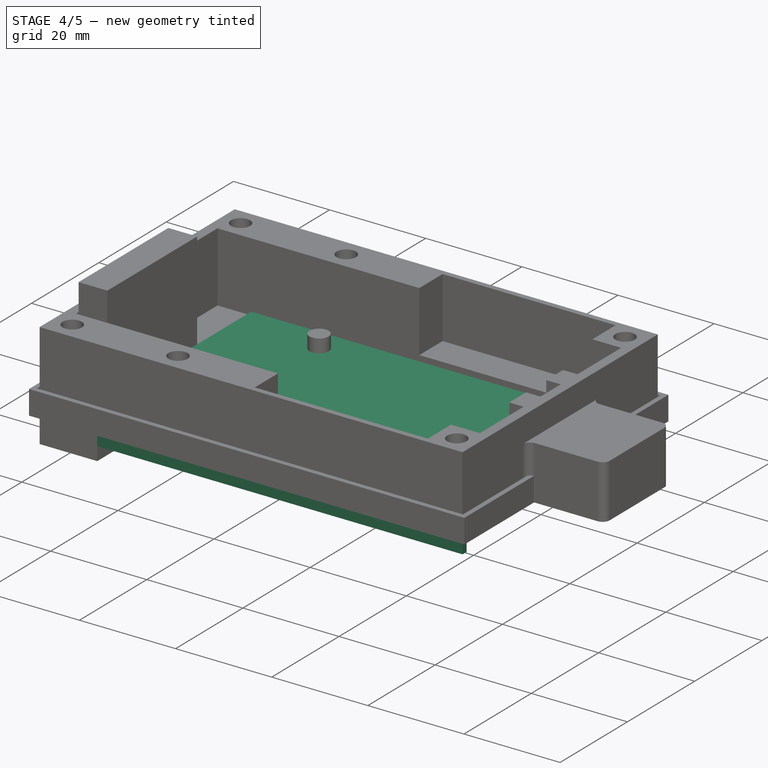
[diagram: stage 4 of 5 — iso view after this stage's code; geometry added in this stage tinted green]
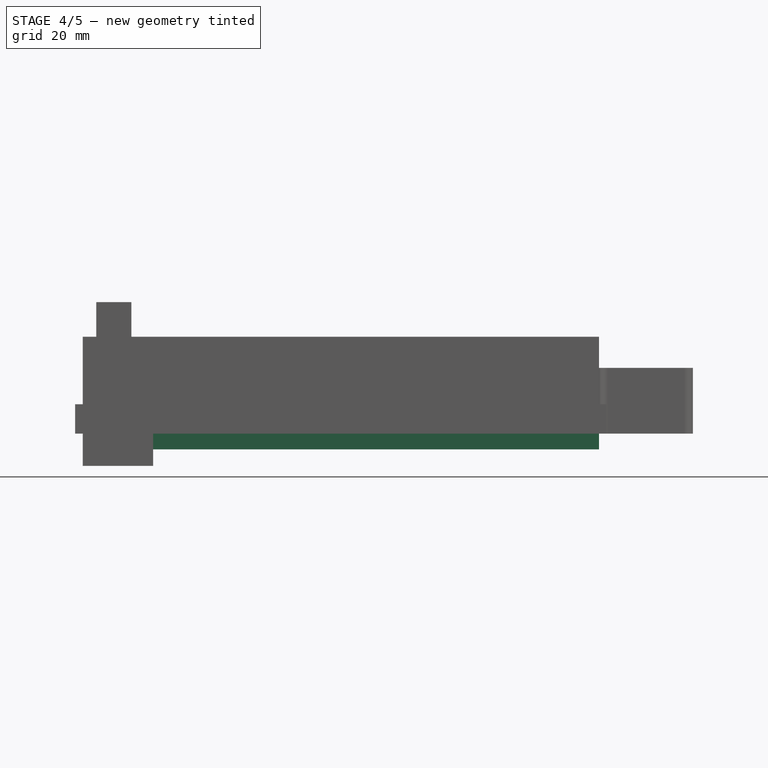
[diagram: stage 4 of 5 — front view after this stage's code; geometry added in this stage tinted green]
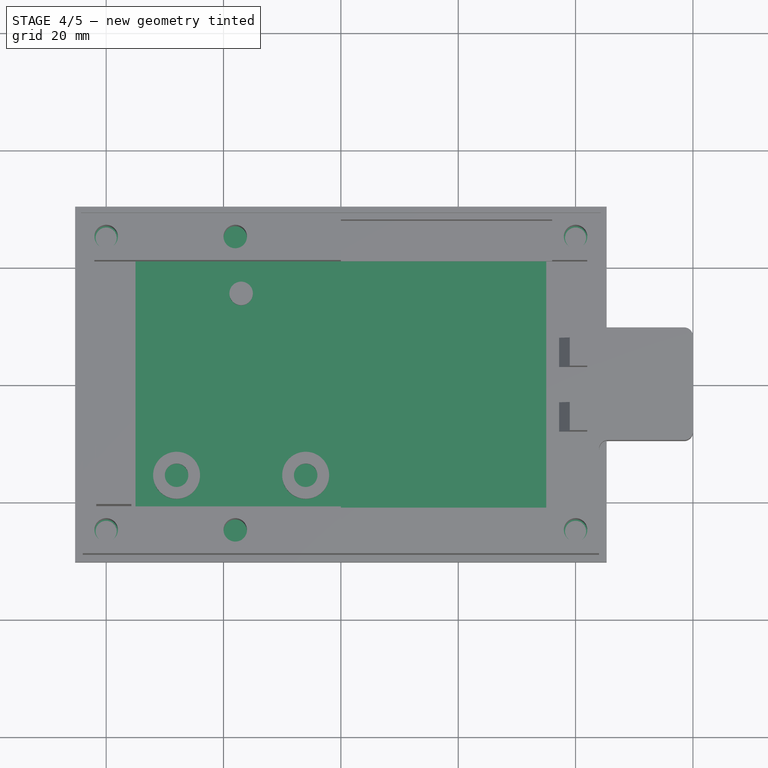
[diagram: stage 4 of 5 — top view after this stage's code; geometry added in this stage tinted green]
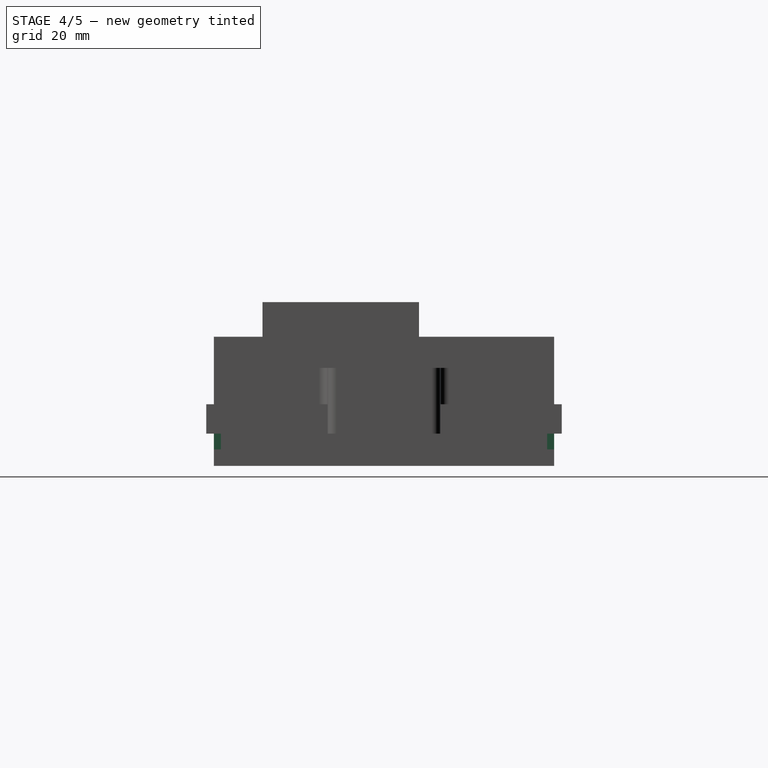
[diagram: stage 4 of 5 — right view after this stage's code; geometry added in this stage tinted green]
FEATURE [Sketcher::SketchObject] Sketch001
  FullyConstrained = true
  MapMode = 5
  Support = -> [XY_Plane001]
  expr: Constraints[10] = <<RAKTrackerSheet>>.SolarPanelWidth
  expr: Constraints[9] = <<RAKTrackerSheet>>.SolarPanelLength
  sketch-geometry (4):
    g0: LineSegment StartX=-35 StartY=27.5 StartZ=0 EndX=35 EndY=27.5 EndZ=0
    g1: LineSegment StartX=35 StartY=27.5 StartZ=0 EndX=35 EndY=-27.5 EndZ=0
    g2: LineSegment StartX=35 StartY=-27.5 StartZ=0 EndX=-35 EndY=-27.5 EndZ=0
    g3: LineSegment StartX=-35 StartY=-27.5 StartZ=0 EndX=-35 EndY=27.5 EndZ=0
  constraints (11):
    c: Coincident(g0,g1)
    c: Coincident(g1,g2)
    c: Coincident(g2,g3)
    c: Coincident(g3,g0)
    c: Horizontal(g0)
    c: Horizontal(g2)
    c: Vertical(g1)
    c: Vertical(g3)
    c: Symmetric(g0,g2,g-1)
    c: DistanceX(g0,g0) = 70
    c: DistanceY(g1,g1) = 55
FEATURE [PartDesign::Pad] Pad001  label="Panel"
  Direction = (0,0,1)
  Length = 2.7
  Length2 = 10
  Profile = -> Sketch001
  ReferenceAxis = -> Sketch001 [N_Axis]
  Type = 0
  expr: Length = <<RAKTrackerSheet>>.SolarPanelHeight
FEATURE [PartDesign::Body] Body001  label="SolarPanel"
  Group = -> [Sketch001,Pad001,Sketch012,Pad006]
  Origin = -> Origin001
  Placement = pos=(6,0,-3) rot=(0,0,1;0rad)
  Tip = -> Pad006
FEATURE [Sketcher::SketchObject] Sketch013  label="Strap-BaseSketch"
  FullyConstrained = true
  MapMode = 5
  Support = -> [XY_Plane003]
  expr: Constraints[20] = <<RAKTrackerSheet>>.BoxLength
  expr: Constraints[21] = <<RAKTrackerSheet>>.BoxWidth
  expr: Constraints[22] = <<RAKTrackerSheet>>.StrapHolderDia / 2
  sketch-geometry (10):
    g0: ArcOfCircle CenterX=-40 CenterY=25 CenterZ=0 NormalX=0 NormalY=0 NormalZ=1 AngleXU=0 Radius=4 StartAngle=1.5708 EndAngle=3.14159
    g1: LineSegment StartX=-40 StartY=29 StartZ=0 EndX=40 EndY=29 EndZ=0
    g2: ArcOfCircle CenterX=40 CenterY=25 CenterZ=0 NormalX=0 NormalY=0 NormalZ=1 AngleXU=0 Radius=4 StartAngle=0 EndAngle=1.5708
    g3: LineSegment StartX=44 StartY=25 StartZ=0 EndX=44 EndY=-25 EndZ=0
    g4: ArcOfCircle CenterX=40 CenterY=-25 CenterZ=0 NormalX=0 NormalY=0 NormalZ=1 AngleXU=0 Radius=4 StartAngle=4.71239 EndAngle=6.28319
    g5: LineSegment StartX=40 StartY=-29 StartZ=0 EndX=-40 EndY=-29 EndZ=0
    g6: ArcOfCircle CenterX=-40 CenterY=-25 CenterZ=0 NormalX=0 NormalY=0 NormalZ=1 AngleXU=0 Radius=4 StartAngle=3.14159 EndAngle=4.71239
    g7: LineSegment StartX=-44 StartY=-25 StartZ=0 EndX=-44 EndY=25 EndZ=0
    g8: GeomPoint X=-44 Y=29 Z=0
    g9: GeomPoint X=44 Y=-29 Z=0
  constraints (23):
    c: Tangent(g0,g1) = 1.5708
    c: Tangent(g1,g2) = 1.5708
    c: Tangent(g2,g3) = 1.5708
    c: Tangent(g3,g4) = 1.5708
    c: Tangent(g4,g5) = 1.5708
    c: Tangent(g5,g6) = 1.5708
    c: Tangent(g6,g7) = 1.5708
    c: Tangent(g7,g0) = 1.5708
    c: Horizontal(g1)
    c: Horizontal(g5)
    c: Vertical(g3)
    c: Vertical(g7)
    c: Equal(g0,g2)
    c: Equal(g2,g4)
    c: Equal(g4,g6)
    c: PointOnObject(g8,g1)
    c: PointOnObject(g8,g7)
    c: PointOnObject(g9,g3)
    c: PointOnObject(g9,g5)
    c: Symmetric(g8,g9,g-1)
    c: DistanceX(g0,g2) = 88
    c: DistanceY(g4,g1) = 58
    c: Radius(g2) = 4
FEATURE [PartDesign::Pad] Pad007  label="Strap-Base"
  Direction = (0,0,1)
  Length = 1
  Length2 = 10
  Profile = -> Sketch013
  ReferenceAxis = -> Sketch013 [N_Axis]
  Type = 0
  expr: Length = <<RAKTrackerSheet>>.BoxFloorHeight
FEATURE [Sketcher::SketchObject] Sketch014  label="Strap-ScrewHoleSketch"
  FullyConstrained = true
  MapMode = 5
  Support = -> [XY_Plane003]
  expr: Constraints[10] = <<RAKTrackerSheet>>.BoxWidth
  expr: Constraints[16] = <<RAKTrackerSheet>>.StrapHolderDia
  expr: Constraints[24] = <<RAKTrackerSheet>>.StrapHoleDistance
  expr: Constraints[46] = <<RAKTrackerSheet>>.BoxWallThicknessLength / 2
  expr: Constraints[48] = <<RAKTrackerSheet>>.BoxWallThicknessLength / 2
  expr: Constraints[9] = <<RAKTrackerSheet>>.BoxLength
  sketch-geometry (18):
    g0: LineSegment StartX=-44 StartY=29 StartZ=0 EndX=44 EndY=29 EndZ=0
    g1: LineSegment StartX=44 StartY=29 StartZ=0 EndX=44 EndY=-29 EndZ=0
    g2: LineSegment StartX=44 StartY=-29 StartZ=0 EndX=-44 EndY=-29 EndZ=0
    g3: LineSegment StartX=-44 StartY=-29 StartZ=0 EndX=-44 EndY=29 EndZ=0
    g4: Circle CenterX=-40 CenterY=25 CenterZ=0 NormalX=0 NormalY=0 NormalZ=1 AngleXU=0 Radius=4
    g5: Circle CenterX=18 CenterY=25 CenterZ=0 NormalX=0 NormalY=0 NormalZ=1 AngleXU=0 Radius=4
    g6: Circle CenterX=40 CenterY=25 CenterZ=0 NormalX=0 NormalY=0 NormalZ=1 AngleXU=0 Radius=4
    g7: Circle CenterX=40 CenterY=-25 CenterZ=0 NormalX=0 NormalY=0 NormalZ=1 AngleXU=0 Radius=4
    g8: Circle CenterX=18 CenterY=-25 CenterZ=0 NormalX=0 NormalY=0 NormalZ=1 AngleXU=0 Radius=4
    g9: Circle CenterX=-40 CenterY=-25 CenterZ=0 NormalX=0 NormalY=0 NormalZ=1 AngleXU=0 Radius=4
    g10: LineSegment StartX=-44 StartY=29 StartZ=0 EndX=-40 EndY=29 EndZ=0
    g11: LineSegment StartX=-40 StartY=29 StartZ=0 EndX=-40 EndY=25 EndZ=0
    g12: LineSegment StartX=-40 StartY=25 StartZ=0 EndX=-44 EndY=25 EndZ=0
    g13: LineSegment StartX=-44 StartY=25 StartZ=0 EndX=-44 EndY=29 EndZ=0
    g14: LineSegment StartX=40 StartY=-25 StartZ=0 EndX=44 EndY=-25 EndZ=0
    g15: LineSegment StartX=44 StartY=-25 StartZ=0 EndX=44 EndY=-29 EndZ=0
    g16: LineSegment StartX=44 StartY=-29 StartZ=0 EndX=40 EndY=-29 EndZ=0
    g17: LineSegment StartX=40 StartY=-29 StartZ=0 EndX=40 EndY=-25 EndZ=0
  constraints (45):
    c: Coincident(g0,g1)
    c: Coincident(g1,g2)
    c: Coincident(g2,g3)
    c: Coincident(g3,g0)
    c: Horizontal(g0)
    c: Horizontal(g2)
    c: Vertical(g1)
    c: Vertical(g3)
    c: Symmetric(g0,g1,g-1)
    c: DistanceX(g0,g0) = 88
    c: DistanceY(g1,g1) = 58
    c: Equal(g4, g5-g9) x5
    c: Diameter(g4) = 8
    c: Horizontal(g4,g5)
    c: Horizontal(g5,g6)
    c: Horizontal(g7,g8)
    c: Horizontal(g8,g9)
    c: Vertical(g9,g4)
    c: Vertical(g5,g8)
    c: Vertical(g6,g7)
    c: DistanceX(g9,g8) = 58
    c: Coincident(g10,g11)
    c: Coincident(g11,g12)
    c: Coincident(g12,g13)
    c: Coincident(g13,g10)
    c: Horizontal(g10)
    c: Horizontal(g12)
    c: Vertical(g11)
    c: Vertical(g13)
    c: Coincident(g10,g0)
    c: Coincident(g11,g4)
    c: Coincident(g14,g15)
    c: Coincident(g15,g16)
    c: Coincident(g16,g17)
    c: Coincident(g17,g14)
    c: Horizontal(g14)
    c: Horizontal(g16)
    c: Vertical(g15)
    c: Vertical(g17)
    c: Coincident(g14,g7)
    c: Coincident(g15,g1)
    c: Equal(g11,g12)
    c: DistanceX(g12,g12) = 4
    c: Equal(g17,g14)
    c: DistanceY(g17,g17) = 4
FEATURE [PartDesign::Pad] Pad008  label="Strap-Offset"
  BaseFeature = -> Pad007
  Direction = (0,0,1)
  Length = 2.5
  Length2 = 10
  Profile = -> Sketch014
  ReferenceAxis = -> Sketch014 [N_Axis]
  Type = 0
  expr: Length = <<RAKTrackerSheet>>.BoxFloorHeight + 1.5 mm
FEATURE [PartDesign::Hole] Hole  label="Strap-ScrewHole"
  BaseFeature = -> Pad008
  CustomThreadClearance = 0
  Depth = 25
  DepthType = 0
  Diameter = 3.6
  DrillForDepth = false
  DrillPoint = 1
  DrillPointAngle = 118
  HoleCutCountersinkAngle = 90
  HoleCutCustomValues = false
  HoleCutDepth = 0
  HoleCutDiameter = 6.7
  HoleCutType = 4
  ModelThread = false
  Profile = -> Sketch014
  Reversed = true
  Tapered = false
  TaperedAngle = 90
  ThreadClass = 0
  ThreadDepth = 25
  ThreadDepthType = 0
  ThreadDirection = 0
  ThreadFit = 2
  ThreadSize = 9
  ThreadType = 2
  Threaded = false
  UseCustomThreadClearance = false
FEATURE [Part::Feature] Part__Feature  label="Open CASCADE STEP translator 6.8 1.1.1.1"
  shape: bbox 35 x 30 x 1.01 mm, 101 faces (baked)
FEATURE [App::Part] Open_CASCADE_STEP_translator_6_8_1_1_1  label="Open CASCADE STEP translator 6.8 1.1.1"
  Group = -> [Part__Feature]
  Origin = -> Origin005
  Placement = pos=(0,0,-1.0098) rot=(0,0,1;0rad)
FEATURE [App::Part] Board
  Group = -> [Open_CASCADE_STEP_translator_6_8_1_1_1]
  Origin = -> Origin006
FEATURE [Part::Feature] Part__Feature001  label="Open CASCADE STEP translator 6.8 1.2.1.1"
  shape: bbox 8.301 x 3.726 x 7.901 mm, 1028 faces (baked)
FEATURE [Part::Feature] Part__Feature002  label="Open CASCADE STEP translator 6.8 1.2.1.2"
  shape: bbox 1.225 x 1.555 x 6.179 mm, 43 faces (baked)
FEATURE [Part::Feature] Part__Feature003  label="Open CASCADE STEP translator 6.8 1.2.1.3"
  shape: bbox 0.34 x 1.49 x 5.529 mm, 48 faces (baked)
FEATURE [Part::Feature] Part__Feature004  label="Open CASCADE STEP translator 6.8 1.2.1.4"
  shape: bbox 0.355 x 1.49 x 5.529 mm, 45 faces (baked)
FEATURE [Part::Feature] Part__Feature005  label="Open CASCADE STEP translator 6.8 1.2.1.5"
  shape: bbox 0.34 x 1.49 x 6.179 mm, 29 faces (baked)
FEATURE [Part::Feature] Part__Feature006  label="Open CASCADE STEP translator 6.8 1.2.1.6"
  shape: bbox 0.34 x 1.49 x 5.529 mm, 29 faces (baked)
FEATURE [Part::Feature] Part__Feature007  label="Open CASCADE STEP translator 6.8 1.2.1.7"
  shape: bbox 0.34 x 1.49 x 5.529 mm, 29 faces (baked)
FEATURE [Part::Feature] Part__Feature008  label="Open CASCADE STEP translator 6.8 1.2.1.8"
  shape: bbox 0.34 x 1.49 x 5.529 mm, 29 faces (baked)
FEATURE [Part::Feature] Part__Feature009  label="Open CASCADE STEP translator 6.8 1.2.1.9"
  shape: bbox 0.34 x 1.49 x 5.529 mm, 29 faces (baked)
FEATURE [Part::Feature] Part__Feature010  label="Open CASCADE STEP translator 6.8 1.2.1.10"
  shape: bbox 0.34 x 1.49 x 6.179 mm, 29 faces (baked)
FEATURE [Part::Feature] Part__Feature011  label="Open CASCADE STEP translator 6.8 1.2.1.11"
  shape: bbox 0.34 x 1.49 x 5.529 mm, 48 faces (baked)
FEATURE [Part::Feature] Part__Feature012  label="Open CASCADE STEP translator 6.8 1.2.1.12"
  shape: bbox 0.355 x 1.49 x 5.529 mm, 48 faces (baked)
FEATURE [Part::Feature] Part__Feature013  label="Open CASCADE STEP translator 6.8 1.2.1.13"
  shape: bbox 1.315 x 1.555 x 6.179 mm, 45 faces (baked)
FEATURE [Part::Feature] Part__Feature014  label="Open CASCADE STEP translator 6.8 1.2.1.14"
  shape: bbox 8.25 x 2.795 x 1.8 mm, 178 faces (baked)
FEATURE [Part::Feature] Part__Feature015  label="Open CASCADE STEP translator 6.8 1.2.1.15"
  shape: bbox 0.8024 x 0.015 x 0.08 mm, 6 faces (baked)
FEATURE [Part::Feature] Part__Feature016  label="Open CASCADE STEP translator 6.8 1.2.1.16"
  shape: bbox 8.942 x 3.745 x 8.001 mm, 393 faces (baked)
FEATURE [App::Part] USB_C_04_24PIN  label="USB-C-04-24PIN"
  Group = -> [Part__Feature001,Part__Feature002,Part__Feature003,Part__Feature004,Part__Feature005,Part__Feature006,Part__Feature007,Part__Feature008,Part__Feature009,Part__Feature010,Part__Feature011,Part__Feature012,Part__Feature013,Part__Feature014,Part__Feature015,Part__Feature016]
  Origin = -> Origin007
  Placement = pos=(-0.525543,22.4395,-0.599999) rot=(0.57735,-0.57735,-0.57735;2.0944rad)
FEATURE [App::Part] J1
  Group = -> [USB_C_04_24PIN]
  Origin = -> Origin008
FEATURE [Part::Feature] Part__Feature017  label="SOT-23-6"
  Placement = pos=(19.7296,18.377,-1.0098) rot=(-0.707107,0.707107,0;3.14159rad)
  shape: bbox 2.426 x 2.794 x 1.092 mm, 98 faces (baked)
FEATURE [App::Part] U3
  Group = -> [Part__Feature017]
  Origin = -> Origin009
FEATURE [Part::Feature] Part__Feature018  label="RES_1005-0402"
  Placement = pos=(17.4752,20.1422,-1.0098) rot=(-0.57735,-0.57735,0.57735;2.0944rad)
  shape: bbox 0.55 x 1.05 x 0.3 mm, 6 faces (baked)
FEATURE [Part::Feature] Part__Feature019  label="RES_1005-0403"
  Placement = pos=(17.4752,20.1422,-1.0098) rot=(-0.57735,-0.57735,0.57735;2.0944rad)
  shape: bbox 0.55 x 0.25 x 0.4 mm, 14 faces (baked)
FEATURE [Part::Feature] Part__Feature020  label="RES_1005-0404"
  Placement = pos=(17.4752,20.1422,-1.0098) rot=(-0.57735,-0.57735,0.57735;2.0944rad)
  shape: bbox 0.55 x 0.25 x 0.4 mm, 14 faces (baked)
FEATURE [Part::Feature] Part__Feature021  label="RES_1005-0405"
  Placement = pos=(17.4752,20.1422,-1.0098) rot=(-0.57735,-0.57735,0.57735;2.0944rad)
  shape: bbox 0.55 x 0.65 x 0.06 mm, 56 faces (baked)
FEATURE [App::Part] RES_1005_0402  label="RES_1005-0406"
  Group = -> [Part__Feature018,Part__Feature019,Part__Feature020,Part__Feature021]
  Origin = -> Origin010
FEATURE [App::Part] R11
  Group = -> [RES_1005_0402]
  Origin = -> Origin011
FEATURE [Part::Feature] Part__Feature022  label="RES_1005-0407"
  Placement = pos=(17.907,15.1892,-1.0098) rot=(0,0.707107,-0.707107;3.14159rad)
  shape: bbox 1.05 x 0.55 x 0.3 mm, 6 faces (baked)
FEATURE [Part::Feature] Part__Feature023  label="RES_1005-0408"
  Placement = pos=(17.907,15.1892,-1.0098) rot=(0,0.707107,-0.707107;3.14159rad)
  shape: bbox 0.25 x 0.55 x 0.4 mm, 14 faces (baked)
FEATURE [Part::Feature] Part__Feature024  label="RES_1005-0409"
  Placement = pos=(17.907,15.1892,-1.0098) rot=(0,0.707107,-0.707107;3.14159rad)
  shape: bbox 0.25 x 0.55 x 0.4 mm, 14 faces (baked)
FEATURE [Part::Feature] Part__Feature025  label="RES_1005-0410"
  Placement = pos=(17.907,15.1892,-1.0098) rot=(0,0.707107,-0.707107;3.14159rad)
  shape: bbox 0.65 x 0.55 x 0.06 mm, 56 faces (baked)
FEATURE [App::Part] RES_1005_0403  label="RES_1005-0411"
  Group = -> [Part__Feature022,Part__Feature023,Part__Feature024,Part__Feature025]
  Origin = -> Origin012
FEATURE [App::Part] R10
  Group = -> [RES_1005_0403]
  Origin = -> Origin013
FEATURE [Part::Feature] Part__Feature026  label="C0402"
  Placement = pos=(19.1595,20.2183,-1.2638) rot=(0.707107,0.707107,0;3.14159rad)
  shape: bbox 0.5 x 0.9958 x 0.5 mm, 76 faces (baked)
FEATURE [App::Part] C11
  Group = -> [Part__Feature026]
  Origin = -> Origin014
FEATURE [Part::Feature] Part__Feature027  label="C0403"
  Placement = pos=(15.3544,16.0861,-1.2638) rot=(0,1,0;3.14159rad)
  shape: bbox 0.9958 x 0.5 x 0.5 mm, 76 faces (baked)
FEATURE [App::Part] C10
  Group = -> [Part__Feature027]
  Origin = -> Origin015
FEATURE [Part::Feature] Part__Feature028  label="RES_1005-0412"
  Placement = pos=(7.7343,5.461,0) rot=(1,0,0;1.5708rad)
  shape: bbox 1.05 x 0.55 x 0.3 mm, 6 faces (baked)
FEATURE [Part::Feature] Part__Feature029  label="RES_1005-0413"
  Placement = pos=(7.7343,5.461,0) rot=(1,0,0;1.5708rad)
  shape: bbox 0.25 x 0.55 x 0.4 mm, 14 faces (baked)
FEATURE [Part::Feature] Part__Feature030  label="RES_1005-0414"
  Placement = pos=(7.7343,5.461,0) rot=(1,0,0;1.5708rad)
  shape: bbox 0.25 x 0.55 x 0.4 mm, 14 faces (baked)
FEATURE [Part::Feature] Part__Feature031  label="RES_1005-0415"
  Placement = pos=(7.7343,5.461,0) rot=(1,0,0;1.5708rad)
  shape: bbox 0.65 x 0.55 x 0.06 mm, 56 faces (baked)
FEATURE [App::Part] RES_1005_0404  label="RES_1005-0416"
  Group = -> [Part__Feature028,Part__Feature029,Part__Feature030,Part__Feature031]
  Origin = -> Origin016
FEATURE [App::Part] R3
  Group = -> [RES_1005_0404]
  Origin = -> Origin017
FEATURE [Part::Feature] Part__Feature032  label="smtso-m1_2-0_8-et"
  Placement = pos=(22.8001,10.85,-1.0098) rot=(1,0,0;3.14159rad)
  shape: bbox 2.5 x 2.5 x 1.8 mm, 9 faces (baked)
FEATURE [App::Part] M10
  Group = -> [Part__Feature032]
  Origin = -> Origin018
FEATURE [Part::Feature] Part__Feature033  label="WCSP6"
  Placement = pos=(14.8876,23.73,-1.0098) rot=(-0.707107,0.707107,0;3.14159rad)
  shape: bbox 1.113 x 1.226 x 0.625 mm, 21 faces (baked)
FEATURE [App::Part] U2
  Group = -> [Part__Feature033]
  Origin = -> Origin019
FEATURE [Part::Feature] Part__Feature034  label="SOT-23-5"
  Placement = pos=(11.2522,22.9616,-1.5178) rot=(-1,0,0;1.5708rad)
  shape: bbox 3 x 2.5 x 1.1 mm, 75 faces (baked)
FEATURE [App::Part] U1
  Group = -> [Part__Feature034]
  Origin = -> Origin020
FEATURE [Part::Feature] Part__Feature035  label="RES_1005-0417"
  Placement = pos=(9.8806,5.461,0) rot=(0,0.707107,0.707107;3.14159rad)
  shape: bbox 1.05 x 0.55 x 0.3 mm, 6 faces (baked)
FEATURE [Part::Feature] Part__Feature036  label="RES_1005-0418"
  Placement = pos=(9.8806,5.461,0) rot=(0,0.707107,0.707107;3.14159rad)
  shape: bbox 0.25 x 0.55 x 0.4 mm, 14 faces (baked)
FEATURE [Part::Feature] Part__Feature037  label="RES_1005-0419"
  Placement = pos=(9.8806,5.461,0) rot=(0,0.707107,0.707107;3.14159rad)
  shape: bbox 0.25 x 0.55 x 0.4 mm, 14 faces (baked)
FEATURE [Part::Feature] Part__Feature038  label="RES_1005-0420"
  Placement = pos=(9.8806,5.461,0) rot=(0,0.707107,0.707107;3.14159rad)
  shape: bbox 0.65 x 0.55 x 0.06 mm, 56 faces (baked)
FEATURE [App::Part] RES_1005_0405  label="RES_1005-0421"
  Group = -> [Part__Feature035,Part__Feature036,Part__Feature037,Part__Feature038]
  Origin = -> Origin021
FEATURE [App::Part] R9
  Group = -> [RES_1005_0405]
  Origin = -> Origin022
FEATURE [Part::Feature] Part__Feature039  label="RES_1005-0422"
  Placement = pos=(16.8783,25.2222,-1.0098) rot=(0,0.707107,-0.707107;3.14159rad)
  shape: bbox 1.05 x 0.55 x 0.3 mm, 6 faces (baked)
FEATURE [Part::Feature] Part__Feature040  label="RES_1005-0423"
  Placement = pos=(16.8783,25.2222,-1.0098) rot=(0,0.707107,-0.707107;3.14159rad)
  shape: bbox 0.25 x 0.55 x 0.4 mm, 14 faces (baked)
FEATURE [Part::Feature] Part__Feature041  label="RES_1005-0424"
  Placement = pos=(16.8783,25.2222,-1.0098) rot=(0,0.707107,-0.707107;3.14159rad)
  shape: bbox 0.25 x 0.55 x 0.4 mm, 14 faces (baked)
FEATURE [Part::Feature] Part__Feature042  label="RES_1005-0425"
  Placement = pos=(16.8783,25.2222,-1.0098) rot=(0,0.707107,-0.707107;3.14159rad)
  shape: bbox 0.65 x 0.55 x 0.06 mm, 56 faces (baked)
FEATURE [App::Part] RES_1005_0406  label="RES_1005-0426"
  Group = -> [Part__Feature039,Part__Feature040,Part__Feature041,Part__Feature042]
  Origin = -> Origin023
FEATURE [App::Part] R8
  Group = -> [RES_1005_0406]
  Origin = -> Origin024
FEATURE [Part::Feature] Part__Feature043  label="RES_1005-0427"
  Placement = pos=(5.1562,16.1798,-1.0098) rot=(0,0.707107,-0.707107;3.14159rad)
  shape: bbox 1.05 x 0.55 x 0.3 mm, 6 faces (baked)
FEATURE [Part::Feature] Part__Feature044  label="RES_1005-0428"
  Placement = pos=(5.1562,16.1798,-1.0098) rot=(0,0.707107,-0.707107;3.14159rad)
  shape: bbox 0.25 x 0.55 x 0.4 mm, 14 faces (baked)
FEATURE [Part::Feature] Part__Feature045  label="RES_1005-0429"
  Placement = pos=(5.1562,16.1798,-1.0098) rot=(0,0.707107,-0.707107;3.14159rad)
  shape: bbox 0.25 x 0.55 x 0.4 mm, 14 faces (baked)
FEATURE [Part::Feature] Part__Feature046  label="RES_1005-0430"
  Placement = pos=(5.1562,16.1798,-1.0098) rot=(0,0.707107,-0.707107;3.14159rad)
  shape: bbox 0.65 x 0.55 x 0.06 mm, 56 faces (baked)
FEATURE [App::Part] RES_1005_0407  label="RES_1005-0431"
  Group = -> [Part__Feature043,Part__Feature044,Part__Feature045,Part__Feature046]
  Origin = -> Origin025
FEATURE [App::Part] R7
  Group = -> [RES_1005_0407]
  Origin = -> Origin026
FEATURE [Part::Feature] Part__Feature047  label="RES_1005-0432"
  Placement = pos=(8.99161,20.1676,0) rot=(0.57735,-0.57735,-0.57735;2.0944rad)
  shape: bbox 0.55 x 1.05 x 0.3 mm, 6 faces (baked)
FEATURE [Part::Feature] Part__Feature048  label="RES_1005-0433"
  Placement = pos=(8.99161,20.1676,0) rot=(0.57735,-0.57735,-0.57735;2.0944rad)
  shape: bbox 0.55 x 0.25 x 0.4 mm, 14 faces (baked)
FEATURE [Part::Feature] Part__Feature049  label="RES_1005-0434"
  Placement = pos=(8.99161,20.1676,0) rot=(0.57735,-0.57735,-0.57735;2.0944rad)
  shape: bbox 0.55 x 0.25 x 0.4 mm, 14 faces (baked)
FEATURE [Part::Feature] Part__Feature050  label="RES_1005-0435"
  Placement = pos=(8.99161,20.1676,0) rot=(0.57735,-0.57735,-0.57735;2.0944rad)
  shape: bbox 0.55 x 0.65 x 0.06 mm, 56 faces (baked)
FEATURE [App::Part] RES_1005_0408  label="RES_1005-0436"
  Group = -> [Part__Feature047,Part__Feature048,Part__Feature049,Part__Feature050]
  Origin = -> Origin027
FEATURE [App::Part] R6
  Group = -> [RES_1005_0408]
  Origin = -> Origin028
FEATURE [Part::Feature] Part__Feature051  label="RES_1005-0437"
  Placement = pos=(16.8783,27.4828,-1.0098) rot=(-1,0,0;1.5708rad)
  shape: bbox 1.05 x 0.55 x 0.3 mm, 6 faces (baked)
FEATURE [Part::Feature] Part__Feature052  label="RES_1005-0438"
  Placement = pos=(16.8783,27.4828,-1.0098) rot=(-1,0,0;1.5708rad)
  shape: bbox 0.25 x 0.55 x 0.4 mm, 14 faces (baked)
FEATURE [Part::Feature] Part__Feature053  label="RES_1005-0439"
  Placement = pos=(16.8783,27.4828,-1.0098) rot=(-1,0,0;1.5708rad)
  shape: bbox 0.25 x 0.55 x 0.4 mm, 14 faces (baked)
FEATURE [Part::Feature] Part__Feature054  label="RES_1005-0440"
  Placement = pos=(16.8783,27.4828,-1.0098) rot=(-1,0,0;1.5708rad)
  shape: bbox 0.65 x 0.55 x 0.06 mm, 56 faces (baked)
FEATURE [App::Part] RES_1005_0409  label="RES_1005-0441"
  Group = -> [Part__Feature051,Part__Feature052,Part__Feature053,Part__Feature054]
  Origin = -> Origin029
FEATURE [App::Part] R5
  Group = -> [RES_1005_0409]
  Origin = -> Origin030
FEATURE [Part::Feature] Part__Feature055  label="RES_1005-0442"
  Placement = pos=(16.8783,26.3398,-1.0098) rot=(0,0.707107,-0.707107;3.14159rad)
  shape: bbox 1.05 x 0.55 x 0.3 mm, 6 faces (baked)
FEATURE [Part::Feature] Part__Feature056  label="RES_1005-0443"
  Placement = pos=(16.8783,26.3398,-1.0098) rot=(0,0.707107,-0.707107;3.14159rad)
  shape: bbox 0.25 x 0.55 x 0.4 mm, 14 faces (baked)
FEATURE [Part::Feature] Part__Feature057  label="RES_1005-0444"
  Placement = pos=(16.8783,26.3398,-1.0098) rot=(0,0.707107,-0.707107;3.14159rad)
  shape: bbox 0.25 x 0.55 x 0.4 mm, 14 faces (baked)
FEATURE [Part::Feature] Part__Feature058  label="RES_1005-0445"
  Placement = pos=(16.8783,26.3398,-1.0098) rot=(0,0.707107,-0.707107;3.14159rad)
  shape: bbox 0.65 x 0.55 x 0.06 mm, 56 faces (baked)
FEATURE [App::Part] RES_1005_0410  label="RES_1005-0446"
  Group = -> [Part__Feature055,Part__Feature056,Part__Feature057,Part__Feature058]
  Origin = -> Origin031
FEATURE [App::Part] R4
  Group = -> [RES_1005_0410]
  Origin = -> Origin032
FEATURE [Part::Feature] Part__Feature059  label="RES_1005-0447"
  Placement = pos=(9.06781,22.3012,-1.0098) rot=(-0.57735,0.57735,-0.57735;2.0944rad)
  shape: bbox 0.55 x 1.05 x 0.3 mm, 6 faces (baked)
FEATURE [Part::Feature] Part__Feature060  label="RES_1005-0448"
  Placement = pos=(9.06781,22.3012,-1.0098) rot=(-0.57735,0.57735,-0.57735;2.0944rad)
  shape: bbox 0.55 x 0.25 x 0.4 mm, 14 faces (baked)
FEATURE [Part::Feature] Part__Feature061  label="RES_1005-0449"
  Placement = pos=(9.06781,22.3012,-1.0098) rot=(-0.57735,0.57735,-0.57735;2.0944rad)
  shape: bbox 0.55 x 0.25 x 0.4 mm, 14 faces (baked)
FEATURE [Part::Feature] Part__Feature062  label="RES_1005-0450"
  Placement = pos=(9.06781,22.3012,-1.0098) rot=(-0.57735,0.57735,-0.57735;2.0944rad)
  shape: bbox 0.55 x 0.65 x 0.06 mm, 56 faces (baked)
FEATURE [App::Part] RES_1005_0411  label="RES_1005-0451"
  Group = -> [Part__Feature059,Part__Feature060,Part__Feature061,Part__Feature062]
  Origin = -> Origin033
FEATURE [App::Part] R2
  Group = -> [RES_1005_0411]
  Origin = -> Origin034
FEATURE [Part::Feature] Part__Feature063  label="RES_1005-0452"
  Placement = pos=(5.0038,9.0932,0) rot=(0.57735,-0.57735,-0.57735;2.0944rad)
  shape: bbox 0.55 x 1.05 x 0.3 mm, 6 faces (baked)
FEATURE [Part::Feature] Part__Feature064  label="RES_1005-0453"
  Placement = pos=(5.0038,9.0932,0) rot=(0.57735,-0.57735,-0.57735;2.0944rad)
  shape: bbox 0.55 x 0.25 x 0.4 mm, 14 faces (baked)
FEATURE [Part::Feature] Part__Feature065  label="RES_1005-0454"
  Placement = pos=(5.0038,9.0932,0) rot=(0.57735,-0.57735,-0.57735;2.0944rad)
  shape: bbox 0.55 x 0.25 x 0.4 mm, 14 faces (baked)
FEATURE [Part::Feature] Part__Feature066  label="RES_1005-0455"
  Placement = pos=(5.0038,9.0932,0) rot=(0.57735,-0.57735,-0.57735;2.0944rad)
  shape: bbox 0.55 x 0.65 x 0.06 mm, 56 faces (baked)
FEATURE [App::Part] RES_1005_0412  label="RES_1005-0456"
  Group = -> [Part__Feature063,Part__Feature064,Part__Feature065,Part__Feature066]
  Origin = -> Origin035
FEATURE [App::Part] R1
  Group = -> [RES_1005_0412]
  Origin = -> Origin036
FEATURE [Part::Feature] Part__Feature067  label="SOT-416"
  Placement = pos=(10.3124,7.2644,0.508) rot=(0.57735,0.57735,0.57735;2.0944rad)
  shape: bbox 1.6 x 1.6 x 0.8 mm, 41 faces (baked)
FEATURE [App::Part] Q2
  Group = -> [Part__Feature067]
  Origin = -> Origin037
FEATURE [Part::Feature] Part__Feature068  label="SOT-417"
  Placement = pos=(7.28981,7.2644,0.508) rot=(0.57735,0.57735,0.57735;2.0944rad)
  shape: bbox 1.6 x 1.6 x 0.8 mm, 41 faces (baked)
FEATURE [App::Part] Q1
  Group = -> [Part__Feature068]
  Origin = -> Origin038
FEATURE [Part::Feature] Part__Feature069  label="PH2-A_RGB15724527"
  Placement = pos=(9.05,26.8,0) rot=(0.57735,-0.57735,-0.57735;2.0944rad)
  shape: bbox 4.5 x 5.9 x 9.4 mm, 32 faces (baked)
FEATURE [App::Part] P2
  Group = -> [Part__Feature069]
  Origin = -> Origin039
FEATURE [Part::Feature] Part__Feature070  label="wf150-2pin"
  Placement = pos=(6.79991,2.34985,0) rot=(0.57735,-0.57735,-0.57735;2.0944rad)
  shape: bbox 3.8 x 4.5 x 7.5 mm, 38 faces (baked)
FEATURE [App::Part] P1
  Group = -> [Part__Feature070]
  Origin = -> Origin040
FEATURE [Part::Feature] Part__Feature071  label="smtso-m1_2-0_8-et001"
  Placement = pos=(30.1999,1.99995,0) rot=(0,0,1;3.14159rad)
  shape: bbox 2.5 x 2.5 x 1.8 mm, 9 faces (baked)
FEATURE [App::Part] M9
  Group = -> [Part__Feature071]
  Origin = -> Origin041
FEATURE [Part::Feature] Part__Feature072  label="smtso-m1_2-0_8-et002"
  Placement = pos=(13.7999,1.99995,0) rot=(0,0,1;3.14159rad)
  shape: bbox 2.5 x 2.5 x 1.8 mm, 9 faces (baked)
FEATURE [App::Part] M8
  Group = -> [Part__Feature072]
  Origin = -> Origin042
FEATURE [Part::Feature] Part__Feature073  label="smtso-m1_2-0_8-et003"
  Placement = pos=(13.7999,28,0) rot=(0,0,1;3.14159rad)
  shape: bbox 2.5 x 2.5 x 1.8 mm, 9 faces (baked)
FEATURE [App::Part] M6
  Group = -> [Part__Feature073]
  Origin = -> Origin043
FEATURE [Part::Feature] Part__Feature074  label="smtso-m1_2-0_8-et004"
  Placement = pos=(30.1999,28,0) rot=(0,0,1;3.14159rad)
  shape: bbox 2.5 x 2.5 x 1.8 mm, 9 faces (baked)
FEATURE [App::Part] M5
  Group = -> [Part__Feature074]
  Origin = -> Origin044
FEATURE [Part::Feature] Part__Feature075  label="smtso-m1_2-0_8-et005"
  Placement = pos=(22.8001,21.85,-1.0098) rot=(1,0,0;3.14159rad)
  shape: bbox 2.5 x 2.5 x 1.8 mm, 9 faces (baked)
FEATURE [App::Part] M3
  Group = -> [Part__Feature075]
  Origin = -> Origin045
FEATURE [Part::Feature] Part__Feature076  label="smtso-m1_2-0_8-et006"
  Placement = pos=(9.80012,10.85,-1.0098) rot=(1,0,0;3.14159rad)
  shape: bbox 2.5 x 2.5 x 1.8 mm, 9 faces (baked)
FEATURE [App::Part] M2
  Group = -> [Part__Feature076]
  Origin = -> Origin046
FEATURE [Part::Feature] Part__Feature077  label="L0806"
  Placement = pos=(17.1449,22.8345,-1.0098) rot=(-0.707107,0.707107,0;3.14159rad)
  shape: bbox 1.5 x 0.9 x 1.5 mm, 10 faces (baked)
FEATURE [Part::Feature] Part__Feature078  label="L0807"
  Placement = pos=(17.1449,22.8345,-1.0098) rot=(-0.707107,0.707107,0;3.14159rad)
  shape: bbox 1.6 x 0.5557 x 1.6 mm, 38 faces (baked)
FEATURE [Part::Feature] Part__Feature079  label="L0808"
  Placement = pos=(17.1449,22.8345,-1.0098) rot=(-0.707107,0.707107,0;3.14159rad)
  shape: bbox 1.6 x 0.5557 x 1.6 mm, 38 faces (baked)
FEATURE [App::Part] L0806  label="L0809"
  Group = -> [Part__Feature077,Part__Feature078,Part__Feature079]
  Origin = -> Origin047
FEATURE [App::Part] L1
  Group = -> [L0806]
  Origin = -> Origin048
FEATURE [Part::Feature] Part__Feature080  label="axe524127"
  Placement = pos=(30.3001,20.1,-1.0098) rot=(-0.707107,0.707107,0;3.14159rad)
  shape: bbox 2.5 x 7.3 x 0.7701 mm, 974 faces (baked)
FEATURE [App::Part] J5
  Group = -> [Part__Feature080]
  Origin = -> Origin049
FEATURE [Part::Feature] Part__Feature081  label="axe524128"
  Placement = pos=(30.3001,9.10001,-1.0098) rot=(-0.707107,0.707107,0;3.14159rad)
  shape: bbox 2.5 x 7.3 x 0.7701 mm, 974 faces (baked)
FEATURE [App::Part] J4
  Group = -> [Part__Feature081]
  Origin = -> Origin050
FEATURE [Part::Feature] Part__Feature082  label="axe540127"
  Placement = pos=(22,28.2001,0) rot=(0,0,1;3.14159rad)
  shape: bbox 10.5 x 2.5 x 0.7701 mm, 1422 faces (baked)
FEATURE [App::Part] J3
  Group = -> [Part__Feature082]
  Origin = -> Origin051
FEATURE [Part::Feature] Part__Feature083  label="ts-1806b"
  Placement = pos=(1.38036,10.3103,0) rot=(0.57735,-0.57735,-0.57735;2.0944rad)
  shape: bbox 3.5 x 4.5 x 2.1 mm, 21 faces (baked)
FEATURE [App::Part] J2
  Group = -> [Part__Feature083]
  Origin = -> Origin052
FEATURE [Part::Feature] Part__Feature084  label="LED0603"
  Placement = pos=(3.0988,0.685806,0) rot=(0,0,1;3.14159rad)
  shape: bbox 1.62 x 0.8 x 0.6 mm, 51 faces (baked)
FEATURE [App::Part] D6
  Group = -> [Part__Feature084]
  Origin = -> Origin053
FEATURE [Part::Feature] Part__Feature085  label="LED0604"
  Placement = pos=(0.711197,2.159,0) rot=(0,0,-1;1.5708rad)
  shape: bbox 0.8 x 1.62 x 0.6 mm, 51 faces (baked)
FEATURE [App::Part] D5
  Group = -> [Part__Feature085]
  Origin = -> Origin054
FEATURE [Part::Feature] Part__Feature086  label="SOD-123F"
  Placement = pos=(9.65201,16.8148,-1.0098) rot=(0.707107,0.707107,0;3.14159rad)
  shape: bbox 3.751 x 1.701 x 1.211 mm, 79 faces, 0 solids (baked)
FEATURE [App::Part] D4
  Group = -> [Part__Feature086]
  Origin = -> Origin055
FEATURE [Part::Feature] Part__Feature087  label="SOD-123"
  Placement = pos=(13.7905,19.1703,-1.5098) rot=(-0.707107,0.707107,0;3.14159rad)
  shape: bbox 1.7 x 3.85 x 1.462 mm, 217 faces (baked)
FEATURE [App::Part] D3
  Group = -> [Part__Feature087]
  Origin = -> Origin056
FEATURE [Part::Feature] Part__Feature088  label="SOD-123F001"
  Placement = pos=(9.65201,19.685,-1.0098) rot=(0.707107,0.707107,0;3.14159rad)
  shape: bbox 3.751 x 1.701 x 1.211 mm, 79 faces, 0 solids (baked)
FEATURE [App::Part] D2
  Group = -> [Part__Feature088]
  Origin = -> Origin057
FEATURE [Part::Feature] Part__Feature089  label="LED0605"
  Placement = pos=(0.711197,5.84199,0) rot=(0,0,1;1.5708rad)
  shape: bbox 0.8 x 1.62 x 0.6 mm, 51 faces (baked)
FEATURE [App::Part] D1
  Group = -> [Part__Feature089]
  Origin = -> Origin058
FEATURE [Part::Feature] Part__Feature090  label="C0404"
  Placement = pos=(5.24992,11.5696,0.254) rot=(0,0,1;1.5708rad)
  shape: bbox 0.5 x 0.9958 x 0.5 mm, 76 faces (baked)
FEATURE [App::Part] C9
  Group = -> [Part__Feature090]
  Origin = -> Origin059
FEATURE [Part::Feature] Part__Feature091  label="C0405"
  Placement = pos=(13.1905,23.9902,-1.2638) rot=(0.707107,0.707107,0;3.14159rad)
  shape: bbox 0.5 x 0.9958 x 0.5 mm, 76 faces (baked)
FEATURE [App::Part] C8
  Group = -> [Part__Feature091]
  Origin = -> Origin060
FEATURE [Part::Feature] Part__Feature092  label="C0406"
  Placement = pos=(15.3542,17.6705,-1.2638) rot=(1,0,0;3.14159rad)
  shape: bbox 0.9958 x 0.5 x 0.5 mm, 76 faces (baked)
FEATURE [App::Part] C7
  Group = -> [Part__Feature092]
  Origin = -> Origin061
FEATURE [Part::Feature] Part__Feature093  label="C0407"
  Placement = pos=(15.3542,18.7627,-1.2638) rot=(1,0,0;3.14159rad)
  shape: bbox 0.9958 x 0.5 x 0.5 mm, 76 faces (baked)
FEATURE [App::Part] C6
  Group = -> [Part__Feature093]
  Origin = -> Origin062
FEATURE [Part::Feature] Part__Feature094  label="C0408"
  Placement = pos=(15.3542,19.8295,-1.2638) rot=(1,0,0;3.14159rad)
  shape: bbox 0.9958 x 0.5 x 0.5 mm, 76 faces (baked)
FEATURE [App::Part] C5
  Group = -> [Part__Feature094]
  Origin = -> Origin063
FEATURE [Part::Feature] Part__Feature095  label="C0409"
  Placement = pos=(15.3542,20.8963,-1.2638) rot=(1,0,0;3.14159rad)
  shape: bbox 0.9958 x 0.5 x 0.5 mm, 76 faces (baked)
FEATURE [App::Part] C4
  Group = -> [Part__Feature095]
  Origin = -> Origin064
FEATURE [Part::Feature] Part__Feature096  label="C0410"
  Placement = pos=(13.6827,21.9584,-1.2638) rot=(-0.707107,0.707107,0;3.14159rad)
  shape: bbox 0.5 x 0.9958 x 0.5 mm, 76 faces (baked)
FEATURE [App::Part] C3
  Group = -> [Part__Feature096]
  Origin = -> Origin065
FEATURE [Part::Feature] Part__Feature097  label="C0411"
  Placement = pos=(10.4061,26.3526,-1.2638) rot=(-0.707107,0.707107,0;3.14159rad)
  shape: bbox 0.5 x 0.9958 x 0.5 mm, 76 faces (baked)
FEATURE [App::Part] C2
  Group = -> [Part__Feature097]
  Origin = -> Origin066
FEATURE [Part::Feature] Part__Feature098  label="C0412"
  Placement = pos=(11.0061,26.3524,-1.2638) rot=(0.707107,0.707107,0;3.14159rad)
  shape: bbox 0.5 x 0.9958 x 0.5 mm, 76 faces (baked)
FEATURE [App::Part] C1
  Group = -> [Part__Feature098]
  Origin = -> Origin067
FEATURE [App::Part] PCB
  Group = -> [Board,J1,U3,R11,R10,C11,C10,R3,M10,U2,U1,R9,R8,R7,R6,R5,R4,R2,R1,Q2,Q1,P2,P1,M9,M8,M6,M5,M3,M2,L1,J5,J4,J3,J2,D6,D5,D4,D3,D2,D1,C9,C8,C7,C6,C5,C4,C3,C2,C1]
  Origin = -> Origin068
  Placement = pos=(-1.5,-19.5,52.9) rot=(0,0,1;1.5708rad)
FEATURE [Sketcher::SketchObject] Sketch019  label="MainBox-SolarPanelProtectorSketch"
  FullyConstrained = true
  MapMode = 5
  Support = -> [XY_Plane]
  expr: Constraints[13] = <<RAKTrackerSheet>>.BoxWidth
  expr: Constraints[15] = <<RAKTrackerSheet>>.BoxLength / 2
  expr: Constraints[5] = <<RAKTrackerSheet>>.SolarPanelWidth + <<RAKTrackerSheet>>.SolarPanelMargin
  expr: Constraints[6] = <<RAKTrackerSheet>>.BoxLength - <<RAKTrackerSheet>>.AntBumpLength
  sketch-geometry (8):
    g0: LineSegment StartX=-32 StartY=27.8 StartZ=0 EndX=44 EndY=27.8 EndZ=0
    g1: LineSegment StartX=44 StartY=-27.8 StartZ=0 EndX=-32 EndY=-27.8 EndZ=0
    g2: LineSegment StartX=-32 StartY=-27.8 StartZ=0 EndX=-32 EndY=27.8 EndZ=0
    g3: LineSegment StartX=-32.4 StartY=29 StartZ=0 EndX=44 EndY=29 EndZ=0
    g4: LineSegment StartX=44 StartY=-29 StartZ=0 EndX=-32.4 EndY=-29 EndZ=0
    g5: LineSegment StartX=-32.4 StartY=-29 StartZ=0 EndX=-32.4 EndY=29 EndZ=0
    g6: LineSegment StartX=44 StartY=29 StartZ=0 EndX=44 EndY=27.8 EndZ=0
    g7: LineSegment StartX=44 StartY=-27.8 StartZ=0 EndX=44 EndY=-29 EndZ=0
  constraints (22):
    c: Coincident(g1,g2)
    c: Coincident(g2,g0)
    c: Horizontal(g0)
    c: Horizontal(g1)
    c: Vertical(g2)
    c: DistanceY(g1,g0) = 55.6
    c: DistanceX(g0,g0) = 76
    c: Symmetric(g0,g1,g-1)
    c: Coincident(g4,g5)
    c: Coincident(g5,g3)
    c: Horizontal(g3)
    c: Horizontal(g4)
    c: Vertical(g5)
    c: DistanceY(g4,g3) = 58
    c: Symmetric(g3,g4,g-1)
    c: DistanceX(g-1,g4) = 44
    c: Coincident(g6,g3)
    c: Coincident(g6,g0)
    c: Vertical(g6)
    c: Coincident(g7,g1)
    c: Coincident(g7,g4)
    c: DistanceX(g3,g0) = 0.4
FEATURE [PartDesign::Pad] Pad013  label="MainBox-SolarPanelProtector"
  BaseFeature = -> Pocket005
  Direction = (0,0,1)
  Length = 2.7
  Length2 = 10
  Placement = pos=(0,0,0) rot=(1,0,0;1.5708rad)
  Profile = -> Sketch019
  ReferenceAxis = -> Sketch019 [N_Axis]
  Reversed = true
  Type = 0
  expr: Length = <<RAKTrackerSheet>>.SolarPanelHeight
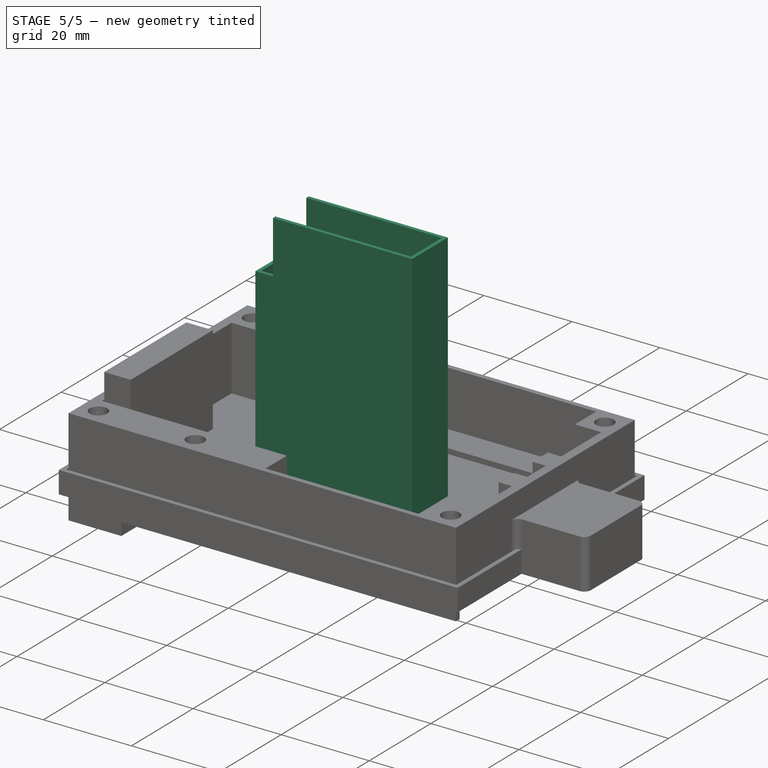
[diagram: stage 5 of 5 — iso view after this stage's code; geometry added in this stage tinted green]
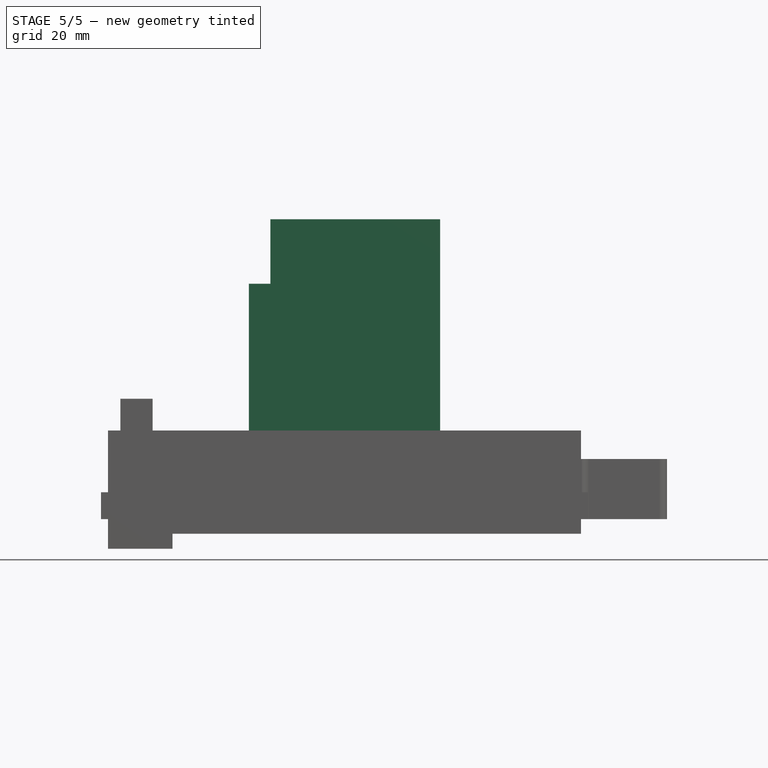
[diagram: stage 5 of 5 — front view after this stage's code; geometry added in this stage tinted green]
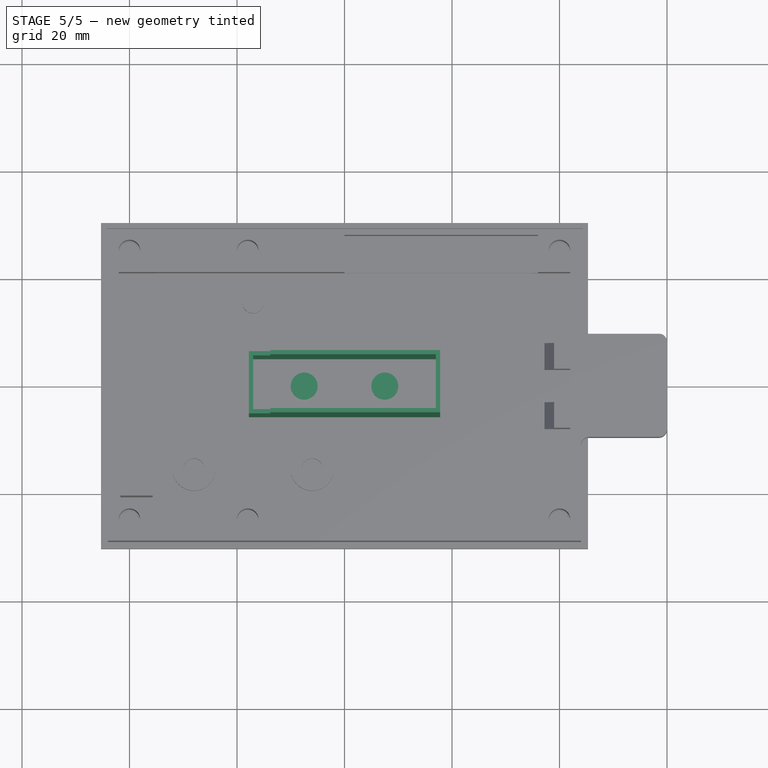
[diagram: stage 5 of 5 — top view after this stage's code; geometry added in this stage tinted green]
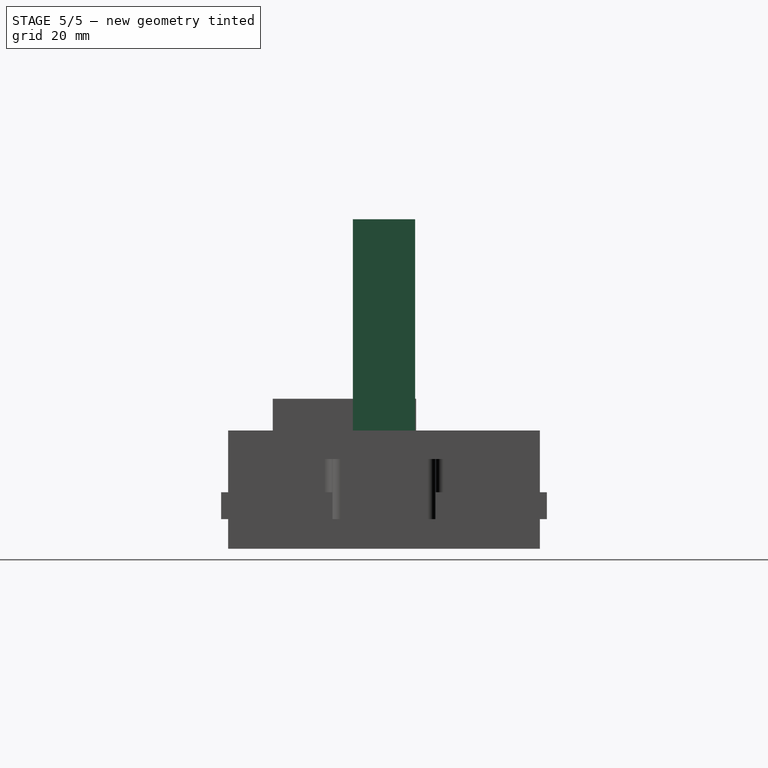
[diagram: stage 5 of 5 — right view after this stage's code; geometry added in this stage tinted green]
FEATURE [Sketcher::SketchObject] Sketch004  label="BatteryHolder-baseSketch"
  FullyConstrained = true
  MapMode = 5
  Support = -> [XY_Plane002]
  expr: Constraints[10] = <<RAKTrackerSheet>>.BatBoxHeight
  expr: Constraints[9] = <<RAKTrackerSheet>>.BatBoxWidth
  sketch-geometry (4):
    g0: LineSegment StartX=-17.8 StartY=5.8 StartZ=0 EndX=17.8 EndY=5.8 EndZ=0
    g1: LineSegment StartX=17.8 StartY=5.8 StartZ=0 EndX=17.8 EndY=-5.8 EndZ=0
    g2: LineSegment StartX=17.8 StartY=-5.8 StartZ=0 EndX=-17.8 EndY=-5.8 EndZ=0
    g3: LineSegment StartX=-17.8 StartY=-5.8 StartZ=0 EndX=-17.8 EndY=5.8 EndZ=0
  constraints (11):
    c: Coincident(g0,g1)
    c: Coincident(g1,g2)
    c: Coincident(g2,g3)
    c: Coincident(g3,g0)
    c: Horizontal(g0)
    c: Horizontal(g2)
    c: Vertical(g1)
    c: Vertical(g3)
    c: Symmetric(g0,g2,g-1)
    c: DistanceX(g0,g0) = 35.6
    c: DistanceY(g1,g1) = 11.6
FEATURE [PartDesign::Pad] Pad003  label="BatteryHolder-base"
  Direction = (0,0,1)
  Length = 0.8
  Length2 = 10
  Profile = -> Sketch004
  ReferenceAxis = -> Sketch004 [N_Axis]
  Type = 0
  expr: Length = <<RAKTrackerSheet>>.BatBoxWallThickness
FEATURE [Sketcher::SketchObject] Sketch005  label="BatteryHolder-wallSketch"
  FullyConstrained = true
  MapMode = 5
  Support = -> [XY_Plane002]
  expr: Constraints[29] = <<RAKTrackerSheet>>.BatBoxWallThickness
  expr: Constraints[30] = <<RAKTrackerSheet>>.BatBoxWidth
  expr: Constraints[31] = <<RAKTrackerSheet>>.BatBoxHeight
  sketch-geometry (12):
    g0: LineSegment StartX=-17.8 StartY=5.8 StartZ=0 EndX=17.8 EndY=5.8 EndZ=0
    g1: LineSegment StartX=17.8 StartY=5.8 StartZ=0 EndX=17.8 EndY=-5.8 EndZ=0
    g2: LineSegment StartX=17.8 StartY=-5.8 StartZ=0 EndX=-17.8 EndY=-5.8 EndZ=0
    g3: LineSegment StartX=-17.8 StartY=-5.8 StartZ=0 EndX=-17.8 EndY=5.8 EndZ=0
    g4: LineSegment StartX=-17 StartY=5 StartZ=0 EndX=17 EndY=5 EndZ=0
    g5: LineSegment StartX=17 StartY=5 StartZ=0 EndX=17 EndY=-5 EndZ=0
    g6: LineSegment StartX=17 StartY=-5 StartZ=0 EndX=-17 EndY=-5 EndZ=0
    g7: LineSegment StartX=-17 StartY=-5 StartZ=0 EndX=-17 EndY=5 EndZ=0
    g8: LineSegment StartX=-17.8 StartY=5.8 StartZ=0 EndX=-17 EndY=5.8 EndZ=0
    g9: LineSegment StartX=-17 StartY=5.8 StartZ=0 EndX=-17 EndY=5 EndZ=0
    g10: LineSegment StartX=-17 StartY=5 StartZ=0 EndX=-17.8 EndY=5 EndZ=0
    g11: LineSegment StartX=-17.8 StartY=5 StartZ=0 EndX=-17.8 EndY=5.8 EndZ=0
  constraints (32):
    c: Coincident(g0,g1)
    c: Coincident(g1,g2)
    c: Coincident(g2,g3)
    c: Horizontal(g0)
    c: Horizontal(g2)
    c: Vertical(g1)
    c: Vertical(g3)
    c: Coincident(g4,g5)
    c: Coincident(g5,g6)
    c: Coincident(g6,g7)
    c: Horizontal(g4)
    c: Horizontal(g6)
    c: Vertical(g5)
    c: Vertical(g7)
    c: Symmetric(g6,g4,g-1)
    c: Symmetric(g0,g1,g-1)
    c: Coincident(g8,g9)
    c: Coincident(g9,g10)
    c: Coincident(g10,g11)
    c: Coincident(g11,g8)
    c: Horizontal(g8)
    c: Horizontal(g10)
    c: Vertical(g9)
    c: Vertical(g11)
    c: Coincident(g8,g0)
    c: Coincident(g9,g4)
    c: Equal(g9,g10)
    c: Coincident(g7,g4)
    c: Coincident(g0,g3)
    c: DistanceY(g9,g9) = 0.8
    c: DistanceX(g0,g0) = 35.6
    c: DistanceY(g1,g1) = 11.6
FEATURE [PartDesign::Pad] Pad004  label="BatteryHolder-wall"
  BaseFeature = -> Pad003
  Direction = (0,0,1)
  Length = 55.8
  Length2 = 10
  Profile = -> Sketch005
  ReferenceAxis = -> Sketch005 [N_Axis]
  Type = 0
  expr: Length = <<RAKTrackerSheet>>.BatBoxLength
FEATURE [Sketcher::SketchObject] Sketch006
  FullyConstrained = true
  MapMode = 5
  Placement = pos=(0,0,0) rot=(1,0,0;1.5708rad)
  Support = -> [XZ_Plane002]
  expr: Constraints[10] = <<RAKTrackerSheet>>.BatBoxWidth
  expr: Constraints[20] = Spreadsheet.BatBoxWireGapLength
  expr: Constraints[21] = <<RAKTrackerSheet>>.BatBoxWireGapWidth
  expr: Constraints[9] = <<RAKTrackerSheet>>.BatBoxLength
  sketch-geometry (8):
    g0: LineSegment StartX=-17.8 StartY=0 StartZ=0 EndX=17.8 EndY=0 EndZ=0
    g1: LineSegment StartX=17.8 StartY=0 StartZ=0 EndX=17.8 EndY=55.8 EndZ=0
    g2: LineSegment StartX=17.8 StartY=55.8 StartZ=0 EndX=-17.8 EndY=55.8 EndZ=0
    g3: LineSegment StartX=-17.8 StartY=55.8 StartZ=0 EndX=-17.8 EndY=0 EndZ=0
    g4: LineSegment StartX=-17.8 StartY=55.8 StartZ=0 EndX=-13.8 EndY=55.8 EndZ=0
    g5: LineSegment StartX=-13.8 StartY=55.8 StartZ=0 EndX=-13.8 EndY=43.8 EndZ=0
    g6: LineSegment StartX=-13.8 StartY=43.8 StartZ=0 EndX=-17.8 EndY=43.8 EndZ=0
    g7: LineSegment StartX=-17.8 StartY=43.8 StartZ=0 EndX=-17.8 EndY=55.8 EndZ=0
  constraints (22):
    c: Coincident(g0,g1)
    c: Coincident(g1,g2)
    c: Coincident(g2,g3)
    c: Coincident(g3,g0)
    c: Horizontal(g0)
    c: Horizontal(g2)
    c: Vertical(g1)
    c: Vertical(g3)
    c: Symmetric(g0,g0,g-1)
    c: DistanceY(g3,g3) = 55.8
    c: DistanceX(g0,g0) = 35.6
    c: Coincident(g4,g5)
    c: Coincident(g5,g6)
    c: Coincident(g6,g7)
    c: Coincident(g7,g4)
    c: Horizontal(g4)
    c: Horizontal(g6)
    c: Vertical(g5)
    c: Vertical(g7)
    c: Coincident(g4,g2)
    c: DistanceY(g5,g5) = 12
    c: DistanceX(g4,g4) = 4
FEATURE [PartDesign::Pocket] Pocket001  label="BatteryHolder-wiregap"
  BaseFeature = -> Pad004
  Direction = (0,1,2e-16)
  Length = 11.6
  Length2 = 5
  Midplane = true
  Profile = -> Sketch006
  ReferenceAxis = -> Sketch006 [N_Axis]
  Type = 0
  expr: Length = <<RAKTrackerSheet>>.BatBoxHeight
FEATURE [Sketcher::SketchObject] Sketch012
  FullyConstrained = true
  MapMode = 5
  Support = -> [XY_Plane001]
  sketch-geometry (2):
    g0: Circle CenterX=-7.5 CenterY=0 CenterZ=0 NormalX=0 NormalY=0 NormalZ=1 AngleXU=0 Radius=2.5
    g1: Circle CenterX=7.5 CenterY=0 CenterZ=0 NormalX=0 NormalY=0 NormalZ=1 AngleXU=0 Radius=2.5
  constraints (6):
    c: PointOnObject(g0,g-1)
    c: PointOnObject(g1,g-1)
    c: Equal(g1,g0)
    c: Diameter(g1) = 5
    c: DistanceX(g0,g1) = 15
    c: DistanceX(g0,g-1) = 7.5
FEATURE [PartDesign::Pad] Pad006  label="SolderPads"
  BaseFeature = -> Pad001
  Direction = (0,0,1)
  Length = 4
  Length2 = 10
  Profile = -> Sketch012
  ReferenceAxis = -> Sketch012 [N_Axis]
  Type = 0
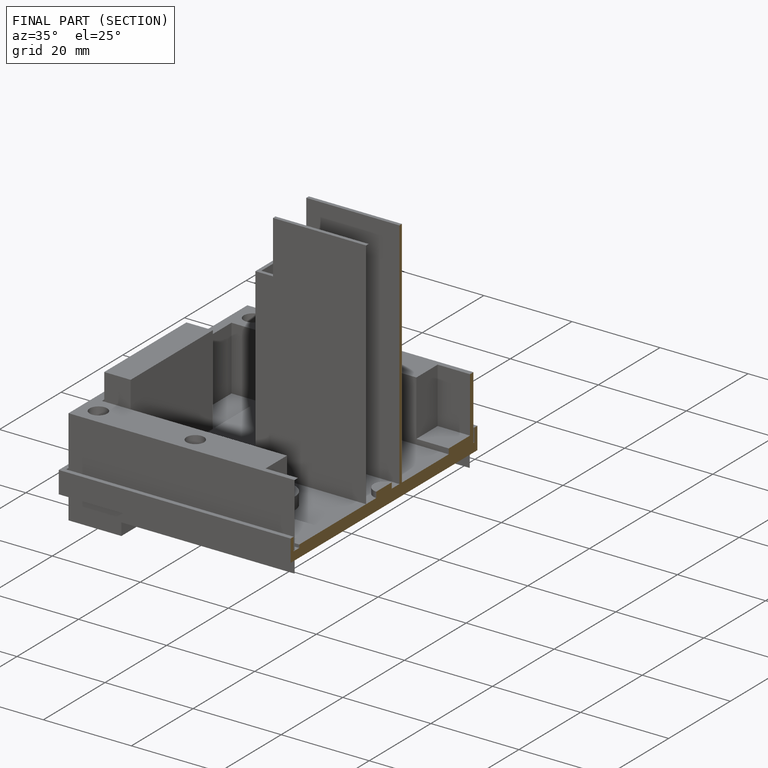
[diagram: finished part — half-section view (interior)]
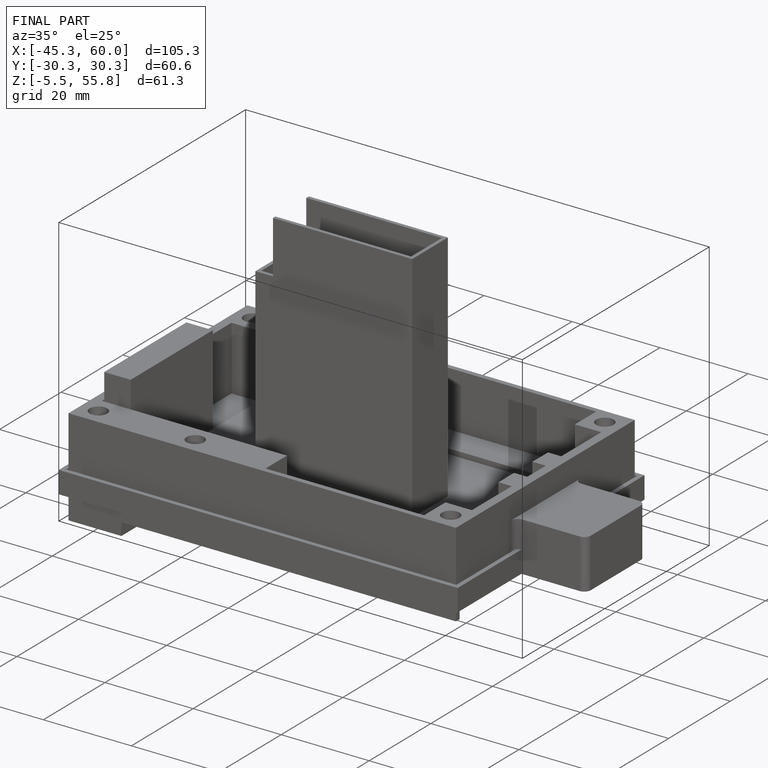
[diagram: finished part — iso view with bounding-box wireframe]
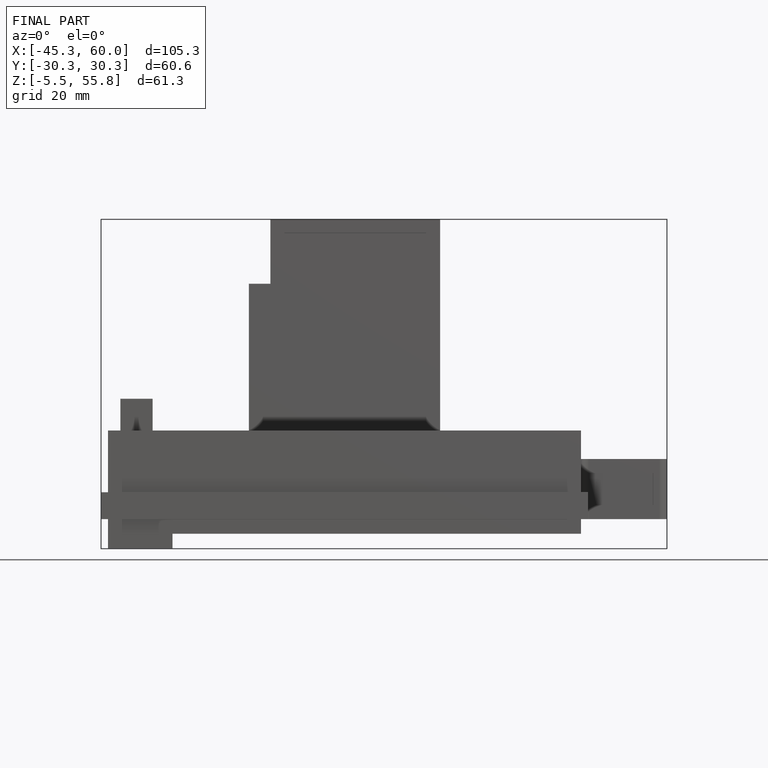
[diagram: finished part — front view with bounding-box wireframe]
